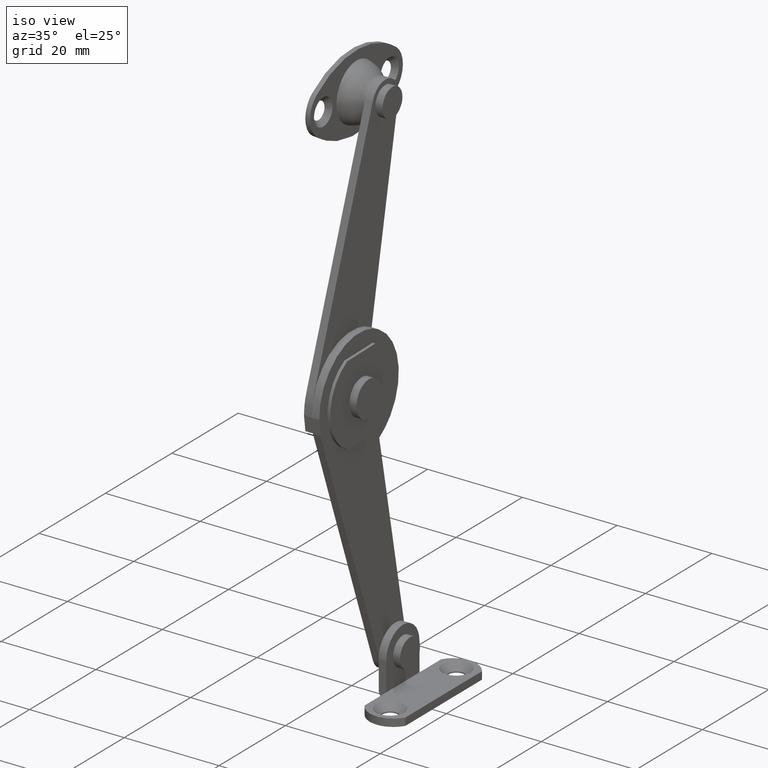
[diagram: clean part render]
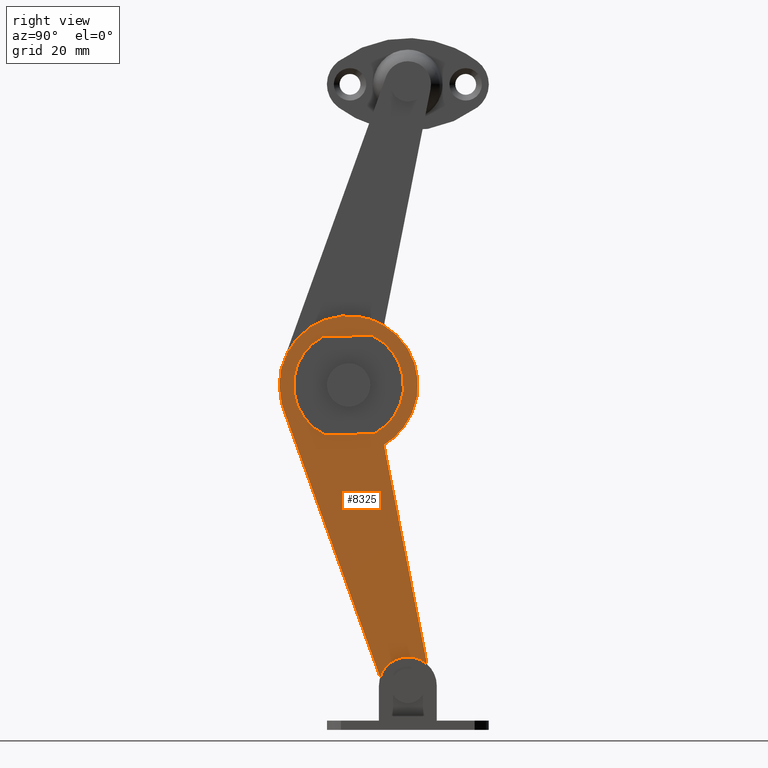
[diagram: tour spotlight — one face highlighted and labeled with its STEP entity id]
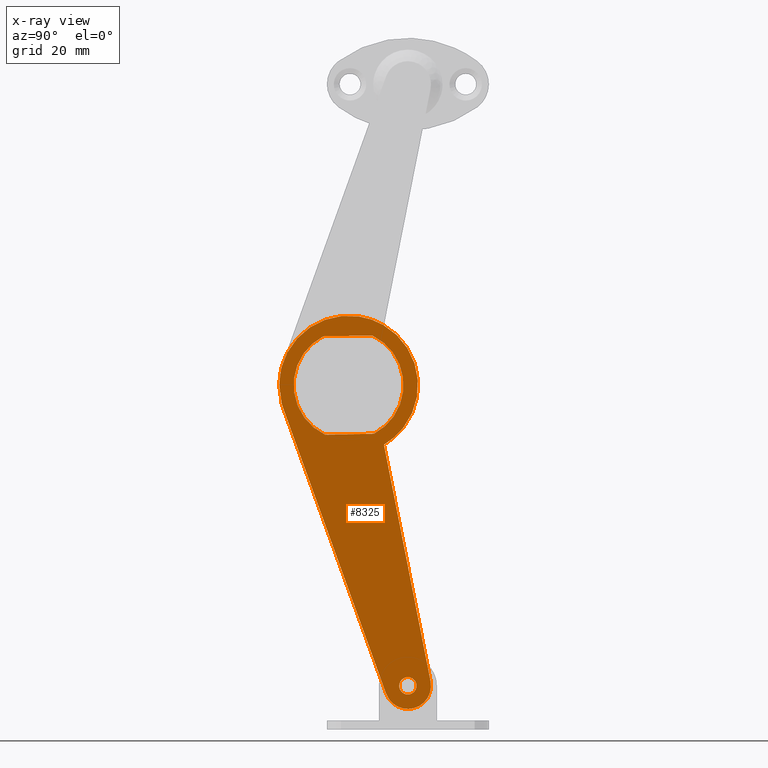
[diagram: x-ray of the same camera — body ghosted, this tour face saturated]
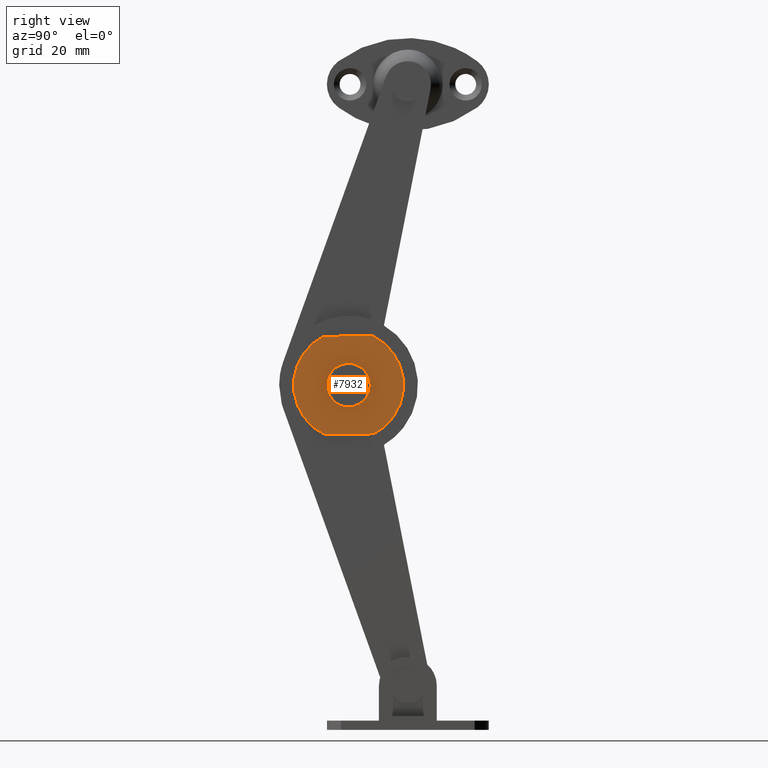
[diagram: tour spotlight — one face highlighted and labeled with its STEP entity id]
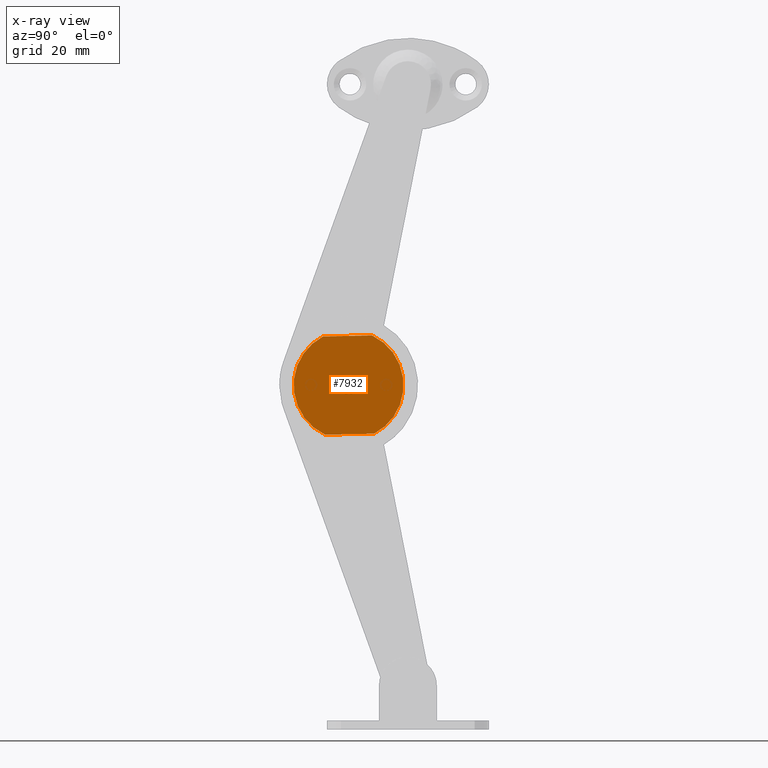
[diagram: x-ray of the same camera — body ghosted, this tour face saturated]
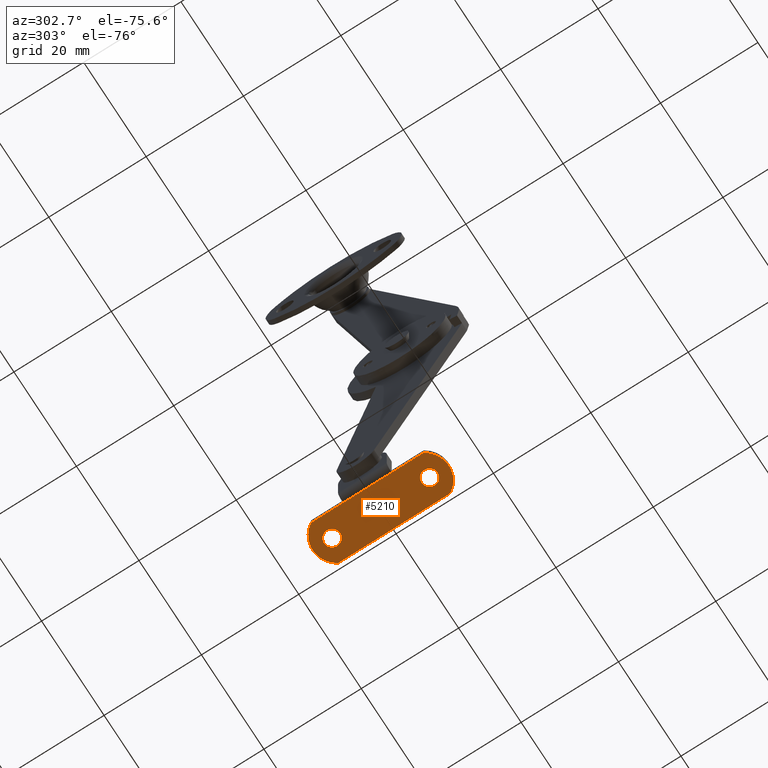
[diagram: tour spotlight — one face highlighted and labeled with its STEP entity id]
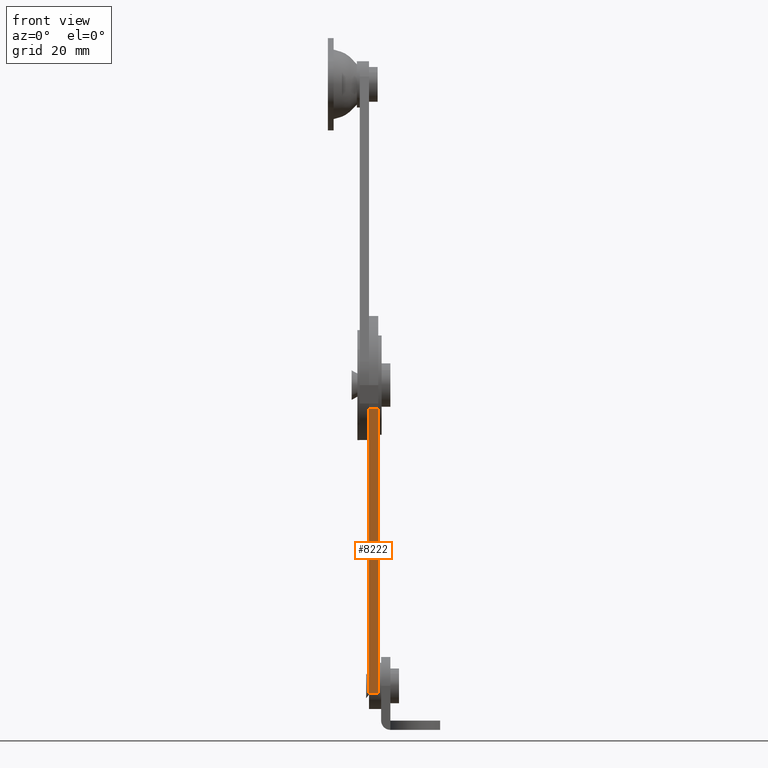
[diagram: tour spotlight — one face highlighted and labeled with its STEP entity id]
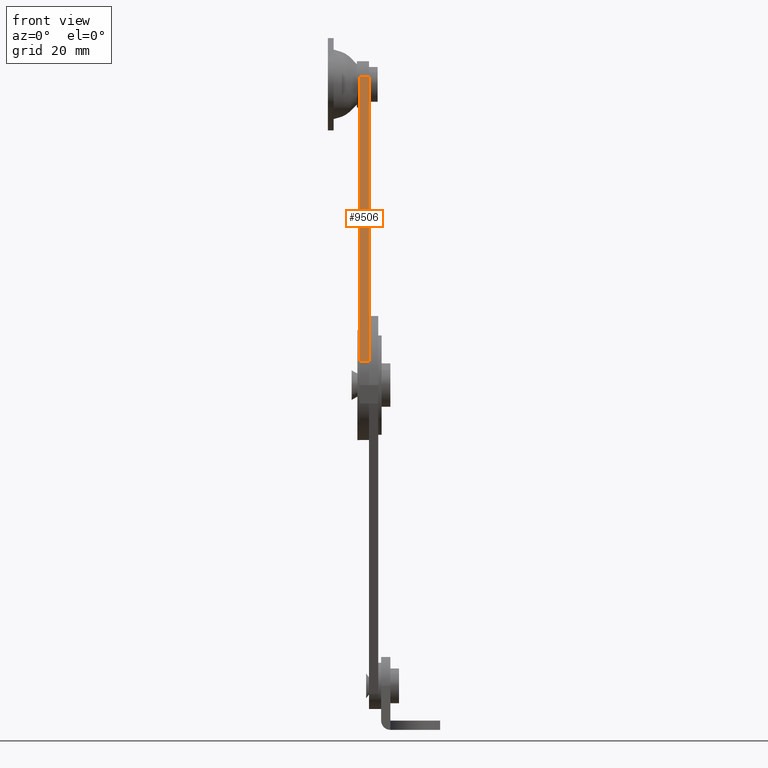
[diagram: tour spotlight — one face highlighted and labeled with its STEP entity id]
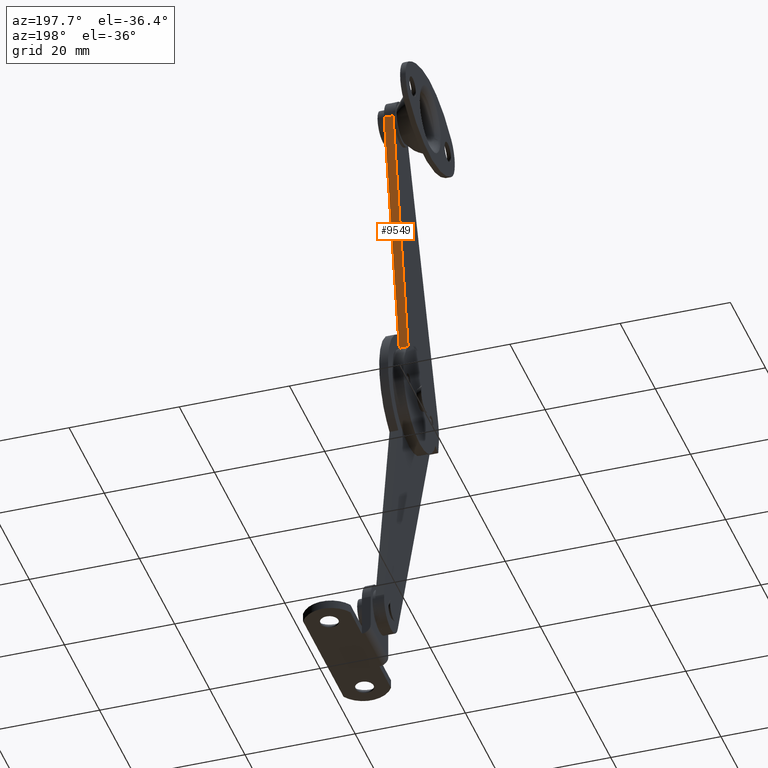
[diagram: tour spotlight — one face highlighted and labeled with its STEP entity id]
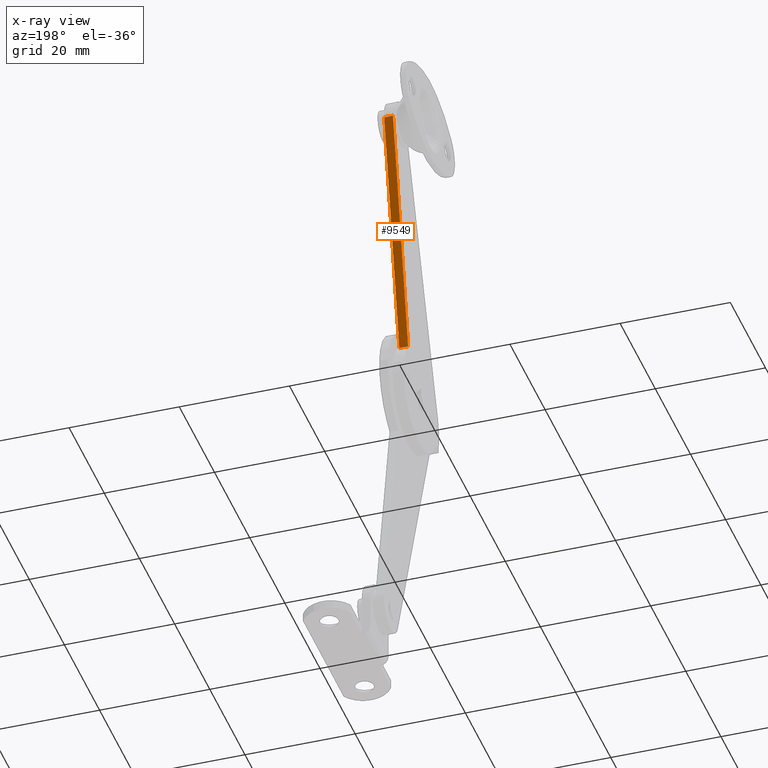
[diagram: x-ray of the same camera — body ghosted, this tour face saturated]
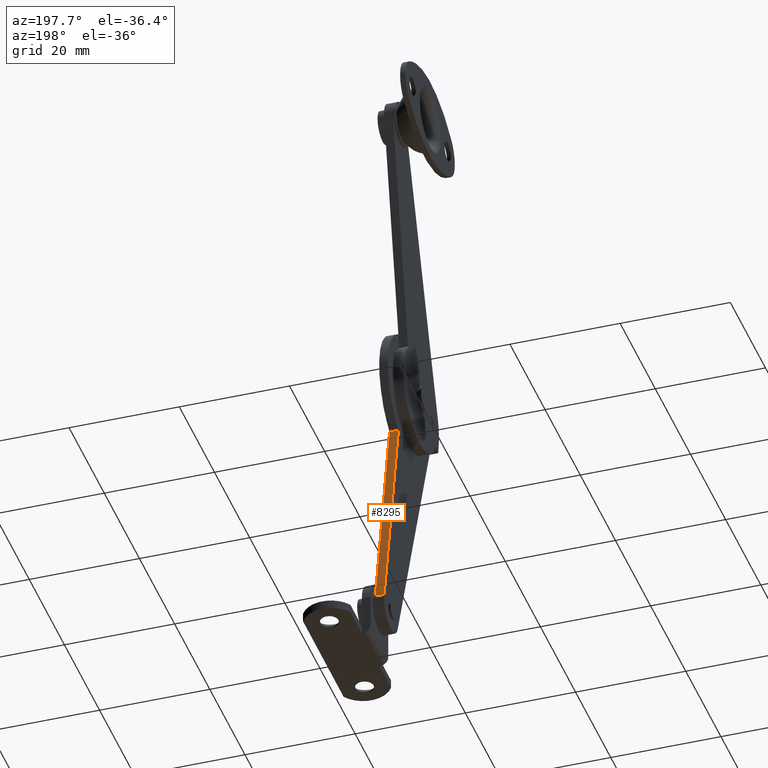
[diagram: tour spotlight — one face highlighted and labeled with its STEP entity id]
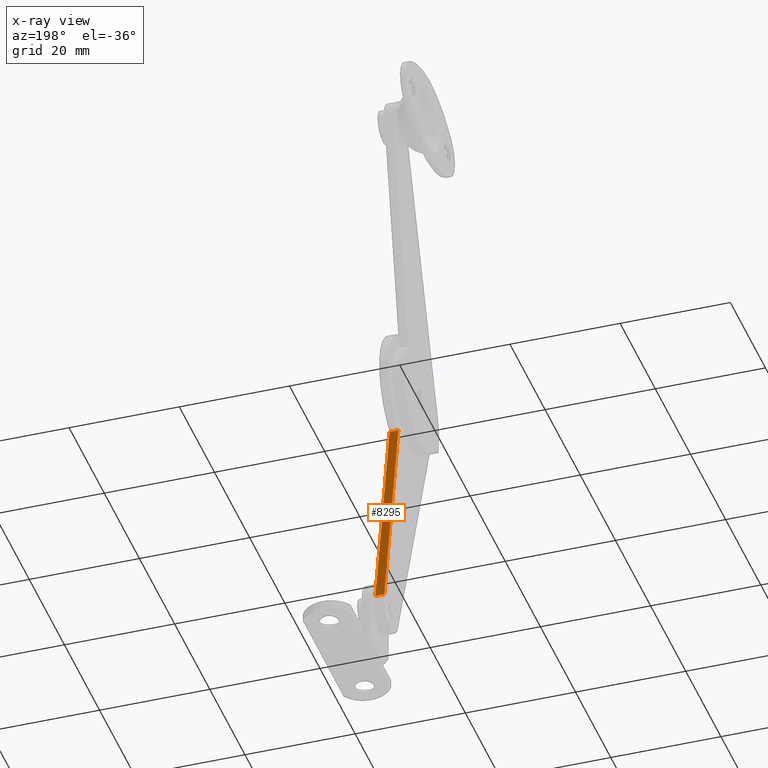
[diagram: x-ray of the same camera — body ghosted, this tour face saturated]
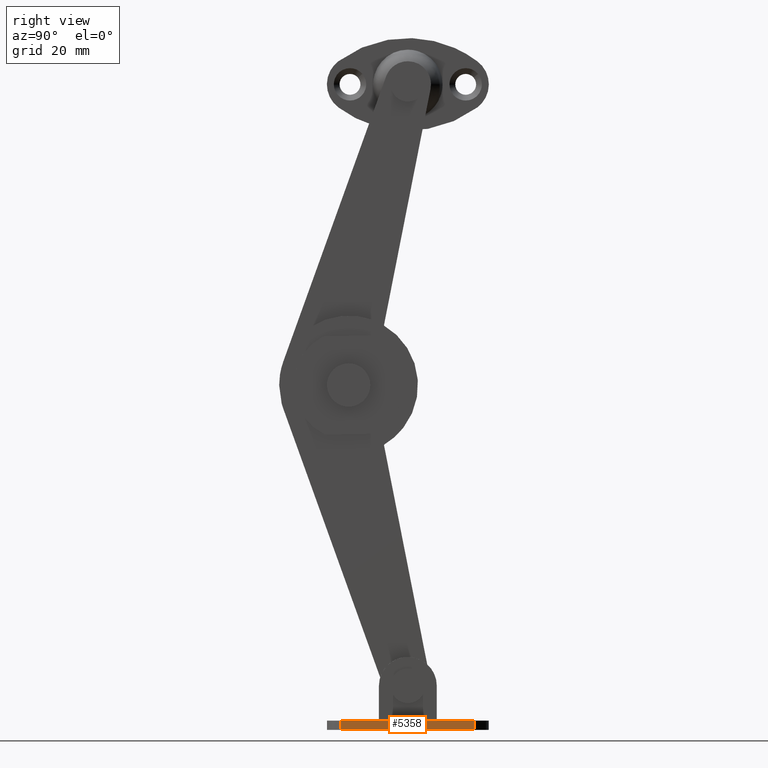
[diagram: tour spotlight — one face highlighted and labeled with its STEP entity id]
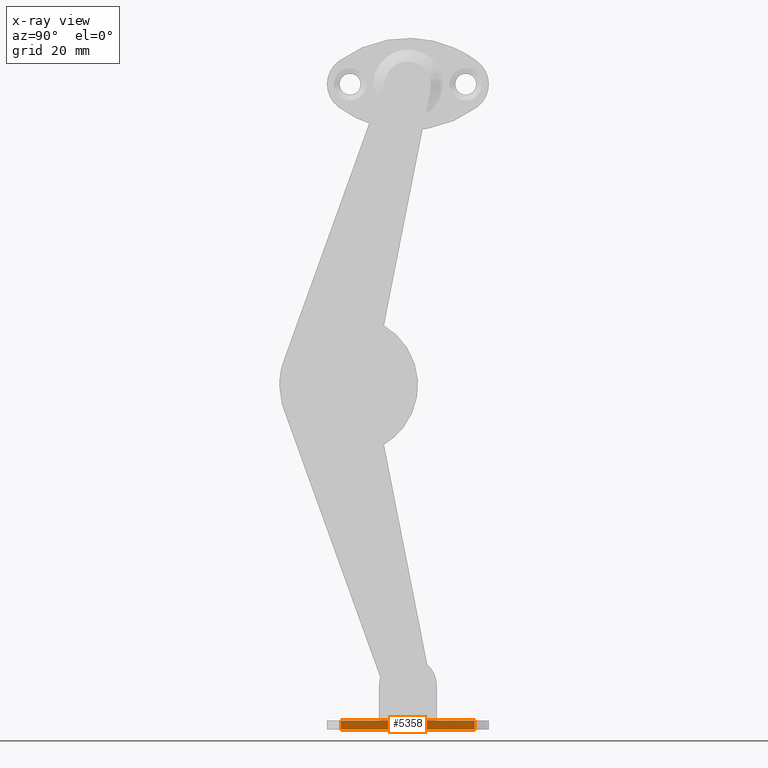
[diagram: x-ray of the same camera — body ghosted, this tour face saturated]
A machine part: a face-by-face anatomy tour. The part has 135 B-rep faces; the first image is the clean iso view, then the 8 largest visible faces are spotlighted one at a time (largest first), each with its STEP entity span.

Face 1 — right view, entity #8325. An x-ray twin of the same camera follows (body ghosted, this face saturated) — the face is partly hidden behind the body. In plain terms, the highlighted face is a freeform B-spline surface patch.
Definition (entity closure, byte-faithful):
#7257=CARTESIAN_POINT('',(8.699998474121170,0.0,-50.499999999999993));
#7258=VERTEX_POINT('',#7257);
#7259=CARTESIAN_POINT('',(8.699998474104365,1.074976035034924,-50.953852664784932));
#7260=VERTEX_POINT('',#7259);
#7261=CARTESIAN_POINT('',(8.699998474121170,0.0,-50.499999999999993));
#7262=CARTESIAN_POINT('',(8.699998474118257,0.187288143505633,-50.499856489521832));
#7263=CARTESIAN_POINT('',(8.699998474111949,0.586644376410651,-50.575808291676090));
#7264=CARTESIAN_POINT('',(8.699998474106721,0.927143610385002,-50.801527376133528));
#7265=CARTESIAN_POINT('',(8.699998474104365,1.074976035034924,-50.953852664784932));
#7266=B_SPLINE_CURVE_WITH_KNOTS('',3,(#7261,#7262,#7263,#7264,#7265),.UNSPECIFIED.,.F.,.U.,(4,1,4),(0.000000071664789,0.561822161295044,1.198513672822475),.UNSPECIFIED.);
#7267=EDGE_CURVE('',#7258,#7260,#7266,.T.);
#7269=CARTESIAN_POINT('',(8.699998474121170,-1.499999999996925,-51.999996962715031));
#7270=VERTEX_POINT('',#7269);
#7271=CARTESIAN_POINT('',(8.699998474121170,-1.499999999996925,-51.999996962715031));
#7272=CARTESIAN_POINT('',(8.699998474121147,-1.500370337712379,-51.779023510026697));
#7273=CARTESIAN_POINT('',(8.699998474121223,-1.425414216354535,-51.448004688552459));
#7274=CARTESIAN_POINT('',(8.699998474121127,-1.198635732506074,-51.080121835901821));
#7275=CARTESIAN_POINT('',(8.699998474121216,-0.960572036989733,-50.830054064066253));
#7276=CARTESIAN_POINT('',(8.699998474121120,-0.576529377810327,-50.580102192674190));
#7277=CARTESIAN_POINT('',(8.699998474121223,-0.220960987595322,-50.499651662492283));
#7278=CARTESIAN_POINT('',(8.699998474121170,0.0,-50.499999999999993));
#7279=B_SPLINE_CURVE_WITH_KNOTS('',3,(#7271,#7272,#7273,#7274,#7275,#7276,#7277,#7278),.UNSPECIFIED.,.F.,.U.,(4,1,1,1,1,4),(0.000000288017795,0.662699800323275,0.994074969800624,1.288574123707096,1.693552390608844,2.356251904649848),.UNSPECIFIED.);
#7280=EDGE_CURVE('',#7270,#7258,#7279,.T.);
#7282=CARTESIAN_POINT('',(8.699998474121170,0.0,-53.500000000000000));
#7283=VERTEX_POINT('',#7282);
#7284=CARTESIAN_POINT('',(8.699998474121170,0.0,-53.500000000000000));
#7285=CARTESIAN_POINT('',(8.699998474121163,-0.171815781495255,-53.500099982126308));
#7286=CARTESIAN_POINT('',(8.699998474121177,-0.503100390715421,-53.442465539245198));
#7287=CARTESIAN_POINT('',(8.699998474121154,-0.884184566475428,-53.232706384397453));
#7288=CARTESIAN_POINT('',(8.699998474121188,-1.169941395297740,-52.960564787200902));
#7289=CARTESIAN_POINT('',(8.699998474121134,-1.419895745083198,-52.576525940906457));
#7290=CARTESIAN_POINT('',(8.699998474121259,-1.500349693132894,-52.220958990374832));
#7291=CARTESIAN_POINT('',(8.699998474121170,-1.499999999996925,-51.999996962715031));
#7292=B_SPLINE_CURVE_WITH_KNOTS('',3,(#7284,#7285,#7286,#7287,#7288,#7289,#7290,#7291),.UNSPECIFIED.,.F.,.U.,(4,1,1,1,1,4),(0.000000283870947,0.515427329841123,0.994076412127644,1.288576003724847,1.693554854033048,2.356255328463372),.UNSPECIFIED.);
#7293=EDGE_CURVE('',#7283,#7270,#7292,.T.);
#7295=CARTESIAN_POINT('',(8.699998474150979,1.105916710460835,-53.013385661442719));
#7296=VERTEX_POINT('',#7295);
#7297=CARTESIAN_POINT('',(8.699998474150979,1.105916710460835,-53.013385661442719));
#7298=CARTESIAN_POINT('',(8.699998474147922,0.992224893007027,-53.137636584586780));
#7299=CARTESIAN_POINT('',(8.699998474142042,0.774266236197816,-53.306753778914000));
#7300=CARTESIAN_POINT('',(8.699998474131647,0.388581214182674,-53.464651270909741));
#7301=CARTESIAN_POINT('',(8.699998474125007,0.142499428526010,-53.500057912028169));
#7302=CARTESIAN_POINT('',(8.699998474121170,0.0,-53.500000000000000));
#7303=B_SPLINE_CURVE_WITH_KNOTS('',3,(#7297,#7298,#7299,#7300,#7301,#7302),.UNSPECIFIED.,.F.,.U.,(4,1,1,4),(0.000000086123438,0.505209565473339,0.816090856426022,1.243582391910081),.UNSPECIFIED.);
#7304=EDGE_CURVE('',#7296,#7283,#7303,.T.);
#7382=CARTESIAN_POINT('',(8.699998474121170,1.499999999996925,-52.000003037284962));
#7383=VERTEX_POINT('',#7382);
#7384=CARTESIAN_POINT('',(8.699998474104365,1.074976035034924,-50.953852664784932));
#7385=CARTESIAN_POINT('',(8.699998474106724,1.218171234207580,-51.100622458972857));
#7386=CARTESIAN_POINT('',(8.699998474112061,1.429280209485726,-51.433305336416822));
#7387=CARTESIAN_POINT('',(8.699998474118264,1.500157540360373,-51.819083171208653));
#7388=CARTESIAN_POINT('',(8.699998474121170,1.499999999996925,-52.000003037284962));
#7389=B_SPLINE_CURVE_WITH_KNOTS('',3,(#7384,#7385,#7386,#7387,#7388),.UNSPECIFIED.,.F.,.U.,(4,1,4),(0.000000060386537,0.615033703956076,1.157742437556688),.UNSPECIFIED.);
#7390=EDGE_CURVE('',#7260,#7383,#7389,.T.);
#7412=CARTESIAN_POINT('',(8.699998474121170,1.499999999996925,-52.000003037284962));
#7413=CARTESIAN_POINT('',(8.699998474126979,1.500204205602727,-52.197058183977383));
#7414=CARTESIAN_POINT('',(8.699998474137846,1.425789151057435,-52.567749196636854));
#7415=CARTESIAN_POINT('',(8.699998474147227,1.223475433218947,-52.885277424369733));
#7416=CARTESIAN_POINT('',(8.699998474150979,1.105916710460835,-53.013385661442719));
#7417=B_SPLINE_CURVE_WITH_KNOTS('',3,(#7412,#7413,#7414,#7415,#7416),.UNSPECIFIED.,.F.,.U.,(4,1,4),(0.000000063143126,0.591085765990306,1.112669327835271),.UNSPECIFIED.);
#7418=EDGE_CURVE('',#7383,#7296,#7417,.T.);
#7938=CARTESIAN_POINT('',(8.699998474121149,-5.834927892778881,-8.413314189848279));
#7939=VERTEX_POINT('',#7938);
#7940=CARTESIAN_POINT('',(8.699998474121170,-14.318506927956500,-8.583275226252480));
#7941=VERTEX_POINT('',#7940);
#7942=CARTESIAN_POINT('',(8.699998474121149,-5.834927892778881,-8.413314189848279));
#7943=CARTESIAN_POINT('',(8.699998474121170,-14.318506927956500,-8.583275226252480));
#7944=QUASI_UNIFORM_CURVE('',1,(#7942,#7943),.UNSPECIFIED.,.F.,.U.);
#7945=EDGE_CURVE('',#7939,#7941,#7944,.T.);
#7975=CARTESIAN_POINT('',(8.699998474121170,-6.175439596685810,8.583275226252310));
#7976=VERTEX_POINT('',#7975);
#7977=CARTESIAN_POINT('',(8.699998474121170,-6.175439596685810,8.583275226252310));
#7978=CARTESIAN_POINT('',(8.699998474121157,-5.531548585170285,8.277988351646709));
#7979=CARTESIAN_POINT('',(8.699998474121186,-4.359905482702276,7.550618414521543));
#7980=CARTESIAN_POINT('',(8.699998474121191,-2.997315836974162,6.224563825214879));
#7981=CARTESIAN_POINT('',(8.699998474121212,-1.937408039482245,4.717378555709098));
#7982=CARTESIAN_POINT('',(8.699998474121131,-1.252954075815755,3.212382035068837));
#7983=CARTESIAN_POINT('',(8.699998474121195,-0.805315238780772,1.454673666261031));
#7984=CARTESIAN_POINT('',(8.699998474121102,-0.693451284486325,-0.195605102640625));
#7985=CARTESIAN_POINT('',(8.699998474121166,-0.878766510761394,-1.751600778145852));
#7986=CARTESIAN_POINT('',(8.699998474121177,-1.213673602430693,-3.026326490882657));
#7987=CARTESIAN_POINT('',(8.699998474121161,-1.762830317051601,-4.374895731615496));
#7988=CARTESIAN_POINT('',(8.699998474121168,-2.648902045907281,-5.802426619956211));
#7989=CARTESIAN_POINT('',(8.699998474121150,-4.019298193752113,-7.272625186047568));
#7990=CARTESIAN_POINT('',(8.699998474121156,-5.155206765636804,-8.057071242994386));
#7991=CARTESIAN_POINT('',(8.699998474121149,-5.834927892778881,-8.413314189848279));
#7992=B_SPLINE_CURVE_WITH_KNOTS('',3,(#7977,#7978,#7979,#7980,#7981,#7982,#7983,#7984,#7985,#7986,#7987,#7988,#7989,#7990,#7991),.UNSPECIFIED.,.F.,.U.,(4,1,1,1,1,1,1,1,1,1,1,1,4),(0.000000190785148,2.137767461056921,4.111137605536591,5.673381860825748,7.646732812322336,9.044523479998386,11.100039934538460,12.580096827635201,13.731204790873930,15.046777414925581,16.937920592211000,18.746835437668100,21.049056074943341),.UNSPECIFIED.);
#7993=EDGE_CURVE('',#7976,#7939,#7992,.T.);
#8010=CARTESIAN_POINT('',(8.699998474121170,-14.659018631863320,8.413314189848109));
#8011=VERTEX_POINT('',#8010);
#8012=CARTESIAN_POINT('',(8.699998474121170,-14.659018631863320,8.413314189848109));
#8013=CARTESIAN_POINT('',(8.699998474121170,-6.175439596685810,8.583275226252310));
#8014=QUASI_UNIFORM_CURVE('',1,(#8012,#8013),.UNSPECIFIED.,.F.,.U.);
#8015=EDGE_CURVE('',#8011,#7976,#8014,.T.);
#8041=CARTESIAN_POINT('',(8.699998474121170,-14.318506927956500,-8.583275226252480));
#8042=CARTESIAN_POINT('',(8.699998474121156,-14.739475760809650,-8.383600291324076));
#8043=CARTESIAN_POINT('',(8.699998474121191,-15.647566553033650,-7.867894531937068));
#8044=CARTESIAN_POINT('',(8.699998474121133,-16.909209749410881,-6.845767229484564));
#8045=CARTESIAN_POINT('',(8.699998474121209,-18.018965962253031,-5.549633960777087));
#8046=CARTESIAN_POINT('',(8.699998474121115,-18.798652177492649,-4.220915151342692));
#8047=CARTESIAN_POINT('',(8.699998474121326,-19.418964645591061,-2.664560820520821));
#8048=CARTESIAN_POINT('',(8.699998474120894,-19.767219113024449,-0.962225764218751));
#8049=CARTESIAN_POINT('',(8.699998474121333,-19.756671172576539,0.799787168744827));
#8050=CARTESIAN_POINT('',(8.699998474121346,-19.491125157690121,2.343083812612208));
#8051=CARTESIAN_POINT('',(8.699998474120893,-19.021418104225891,3.751882997791653));
#8052=CARTESIAN_POINT('',(8.699998474121308,-18.250290319957880,5.210631526547355));
#8053=CARTESIAN_POINT('',(8.699998474121115,-17.215689759123229,6.533583246631879));
#8054=CARTESIAN_POINT('',(8.699998474121186,-15.980508694822410,7.628515726202565));
#8055=CARTESIAN_POINT('',(8.699998474121163,-15.095929218690840,8.184223976621940));
#8056=CARTESIAN_POINT('',(8.699998474121170,-14.659018631863320,8.413314189848109));
#8057=B_SPLINE_CURVE_WITH_KNOTS('',3,(#8041,#8042,#8043,#8044,#8045,#8046,#8047,#8048,#8049,#8050,#8051,#8052,#8053,#8054,#8055,#8056),.UNSPECIFIED.,.F.,.U.,(4,1,1,1,1,1,1,1,1,1,1,1,1,4),(0.000000190781464,1.397779474769521,3.124453336930635,4.851146111263162,6.495618087659178,7.728985915195963,9.866762507777157,11.675594414930311,12.991207332799290,14.553446448787261,16.115685684186371,17.924596281312350,19.569065740469039,21.049056074943351),.UNSPECIFIED.);
#8058=EDGE_CURVE('',#7941,#8011,#8057,.T.);
#8088=CARTESIAN_POINT('',(8.699998474121170,-22.246973262321148,6.274254E-016));
#8089=VERTEX_POINT('',#8088);
#8090=CARTESIAN_POINT('',(8.699998474121170,-4.303190586159510,10.424559822772419));
#8091=VERTEX_POINT('',#8090);
#8092=CARTESIAN_POINT('',(8.699998474121170,-22.246973262321148,6.274254E-016));
#8093=CARTESIAN_POINT('',(8.699998474121184,-22.247188398965971,0.946587042855039));
#8094=CARTESIAN_POINT('',(8.699998474121170,-22.045080702614321,2.643808156613526));
#8095=CARTESIAN_POINT('',(8.699998474121143,-21.310974242985640,4.783504625234647));
#8096=CARTESIAN_POINT('',(8.699998474121198,-20.442644876082429,6.396977777126180));
#8097=CARTESIAN_POINT('',(8.699998474121179,-19.500523674596071,7.693666781725843));
#8098=CARTESIAN_POINT('',(8.699998474121152,-18.465112020500630,8.785449656662030));
#8099=CARTESIAN_POINT('',(8.699998474121189,-17.178653267097420,9.846182739075243));
#8100=CARTESIAN_POINT('',(8.699998474121154,-15.723426168769659,10.731794629558980));
#8101=CARTESIAN_POINT('',(8.699998474121179,-14.090382015772080,11.406199588660821));
#8102=CARTESIAN_POINT('',(8.699998474121163,-12.476949021121429,11.830257562419360));
#8103=CARTESIAN_POINT('',(8.699998474121186,-10.949452506334120,12.011799815398890));
#8104=CARTESIAN_POINT('',(8.699998474121090,-9.347859136195673,11.998669091893490));
#8105=CARTESIAN_POINT('',(8.699998474121397,-7.791091500262466,11.787767462710811));
#8106=CARTESIAN_POINT('',(8.699998474120735,-6.028908274458955,11.285838240768591));
#8107=CARTESIAN_POINT('',(8.699998474121321,-4.898611854576870,10.764118570287691));
#8108=CARTESIAN_POINT('',(8.699998474121170,-4.303190586159510,10.424559822772419));
#8109=B_SPLINE_CURVE_WITH_KNOTS('',3,(#8092,#8093,#8094,#8095,#8096,#8097,#8098,#8099,#8100,#8101,#8102,#8103,#8104,#8105,#8106,#8107,#8108),.UNSPECIFIED.,.F.,.U.,(4,1,1,1,1,1,1,1,1,1,1,1,1,1,4),(0.000000161244348,2.839725578467938,5.091937258495914,6.756615236758890,8.323382039222288,9.890147336331847,11.261065747880060,13.317338768469790,14.982041088548700,16.548786421070279,18.311387343077531,19.584376510113909,21.346973492226841,23.011683317127510,25.067997343372920),.UNSPECIFIED.);
#8110=EDGE_CURVE('',#8089,#8091,#8109,.T.);
#8112=CARTESIAN_POINT('',(8.699998474121170,-4.135061934568050,-10.326884327893060));
#8113=VERTEX_POINT('',#8112);
#8114=CARTESIAN_POINT('',(8.699998474121170,-4.303190586159510,10.424559822772419));
#8115=CARTESIAN_POINT('',(8.699998474121189,-3.424052308885202,9.923574677718571));
#8116=CARTESIAN_POINT('',(8.699998474121115,-1.951562318525757,8.816029228279541));
#8117=CARTESIAN_POINT('',(8.699998474121220,-0.391883788726927,6.955243715490821));
#8118=CARTESIAN_POINT('',(8.699998474121150,0.750890806014766,4.969533918309476));
#8119=CARTESIAN_POINT('',(8.699998474121143,1.503520060042972,2.832315815569034));
#8120=CARTESIAN_POINT('',(8.699998474121234,1.827896787123409,0.360898977601914));
#8121=CARTESIAN_POINT('',(8.699998474121179,1.682173606516161,-1.733901657326713));
#8122=CARTESIAN_POINT('',(8.699998474121140,1.237327140805432,-3.611324080509947));
#8123=CARTESIAN_POINT('',(8.699998474121202,0.643348633126884,-5.136695797354110));
#8124=CARTESIAN_POINT('',(8.699998474121156,-0.257513743084260,-6.731651757868211));
#8125=CARTESIAN_POINT('',(8.699998474121175,-1.713116924414665,-8.587737253534867));
#8126=CARTESIAN_POINT('',(8.699998474121175,-3.151629068182543,-9.745417080564730));
#8127=CARTESIAN_POINT('',(8.699998474121170,-4.135061934568050,-10.326884327893060));
#8128=B_SPLINE_CURVE_WITH_KNOTS('',3,(#8114,#8115,#8116,#8117,#8118,#8119,#8120,#8121,#8122,#8123,#8124,#8125,#8126,#8127),.UNSPECIFIED.,.F.,.U.,(4,1,1,1,1,1,1,1,1,1,1,4),(0.000000161265319,3.035557840107234,5.483616284415316,7.246227786835163,9.890145772382402,12.240235281537650,14.688261771119940,16.157075988045762,18.017616736004179,19.584373413203259,21.640749423800560,25.067993379326161),.UNSPECIFIED.);
#8129=EDGE_CURVE('',#8091,#8113,#8128,.T.);
#8151=CARTESIAN_POINT('',(8.699998474121170,-21.820226994428399,-3.171718469893720));
#8152=VERTEX_POINT('',#8151);
#8153=CARTESIAN_POINT('',(8.699998474121170,-21.820226994428399,-3.171718469893720));
#8154=CARTESIAN_POINT('',(8.699998474121170,-22.246973262321148,6.274254E-016));
#8155=QUASI_UNIFORM_CURVE('',1,(#8153,#8154),.UNSPECIFIED.,.F.,.U.);
#8156=EDGE_CURVE('',#8152,#8089,#8155,.T.);
#8182=CARTESIAN_POINT('',(8.699998474121170,-21.535469714833550,-4.070631911635386));
#8183=VERTEX_POINT('',#8182);
#8184=CARTESIAN_POINT('',(8.699998474121170,-21.535469714833550,-4.070631911635386));
#8185=CARTESIAN_POINT('',(8.699998474121164,-21.642116364647531,-3.774879252565015));
#8186=CARTESIAN_POINT('',(8.699998474121179,-21.737134300461349,-3.474932916207983));
#8187=CARTESIAN_POINT('',(8.699998474121170,-21.820226994428399,-3.171718469893720));
#8188=B_SPLINE_CURVE_WITH_KNOTS('',3,(#8184,#8185,#8186,#8187),.UNSPECIFIED.,.F.,.U.,(4,4),(2.864918E-010,0.943184559594797),.UNSPECIFIED.);
#8189=EDGE_CURVE('',#8183,#8152,#8188,.T.);
#8206=CARTESIAN_POINT('',(8.699998474121170,-3.762834701924080,-53.356878760970297));
#8207=VERTEX_POINT('',#8206);
#8208=CARTESIAN_POINT('',(8.699998474121170,-3.762834701924080,-53.356878760970297));
#8209=CARTESIAN_POINT('',(8.699998474121170,-21.535469714833550,-4.070631911635386));
#8210=QUASI_UNIFORM_CURVE('',1,(#8208,#8209),.UNSPECIFIED.,.F.,.U.);
#8211=EDGE_CURVE('',#8207,#8183,#8210,.T.);
#8241=CARTESIAN_POINT('',(8.699998474121170,3.924537018917785,-51.226640025646198));
#8242=VERTEX_POINT('',#8241);
#8243=CARTESIAN_POINT('',(8.699998474121170,1.068183354324262,-55.854742561769363));
#8244=VERTEX_POINT('',#8243);
#8245=CARTESIAN_POINT('',(8.699998474121170,3.924537018917785,-51.226640025646198));
#8246=CARTESIAN_POINT('',(8.699998474121180,4.024467514269751,-51.730857855357307));
#8247=CARTESIAN_POINT('',(8.699998474121164,4.024981502023551,-52.460494409248710));
#8248=CARTESIAN_POINT('',(8.699998474121166,3.777729586315192,-53.364410817646707));
#8249=CARTESIAN_POINT('',(8.699998474121179,3.430462406653947,-54.133442728836791));
#8250=CARTESIAN_POINT('',(8.699998474121161,2.808621191646889,-54.928211314920901));
#8251=CARTESIAN_POINT('',(8.699998474121179,1.935657092827103,-55.544486646653702));
#8252=CARTESIAN_POINT('',(8.699998474121168,1.338321332104119,-55.779913104672239));
#8253=CARTESIAN_POINT('',(8.699998474121170,1.068183354324262,-55.854742561769363));
#8254=B_SPLINE_CURVE_WITH_KNOTS('',3,(#8245,#8246,#8247,#8248,#8249,#8250,#8251,#8252,#8253),.UNSPECIFIED.,.F.,.U.,(4,1,1,1,1,1,4),(0.000000133109157,1.541767740353710,2.149150377459788,2.803229211478838,4.064654046546166,5.139243347677382,5.980187953213187),.UNSPECIFIED.);
#8255=EDGE_CURVE('',#8242,#8244,#8254,.T.);
#8257=CARTESIAN_POINT('',(8.699998474121170,1.068183354324262,-55.854742561769363));
#8258=CARTESIAN_POINT('',(8.699998474121179,0.738031750615944,-55.946319182414229));
#8259=CARTESIAN_POINT('',(8.699998474121141,0.054061464463814,-56.043863488998007));
#8260=CARTESIAN_POINT('',(8.699998474121246,-0.959848826131714,-55.926729740544587));
#8261=CARTESIAN_POINT('',(8.699998474121076,-1.780210406525629,-55.611972976728417));
#8262=CARTESIAN_POINT('',(8.699998474121289,-2.479420207016171,-55.168904035646932));
#8263=CARTESIAN_POINT('',(8.699998474121065,-3.200712895553418,-54.494875351351268));
#8264=CARTESIAN_POINT('',(8.699998474121216,-3.599434870400753,-53.811225607711123));
#8265=CARTESIAN_POINT('',(8.699998474121170,-3.762834701924080,-53.356878760970297));
#8266=B_SPLINE_CURVE_WITH_KNOTS('',3,(#8257,#8258,#8259,#8260,#8261,#8262,#8263,#8264,#8265),.UNSPECIFIED.,.F.,.U.,(4,1,1,1,1,1,4),(0.000000133093981,1.027831927564370,2.055706277293062,3.036767364016370,3.644152353959111,4.531858454818927,5.980184152883719),.UNSPECIFIED.);
#8267=EDGE_CURVE('',#8244,#8207,#8266,.T.);
#8285=CARTESIAN_POINT('',(8.699998474121170,-4.135061934568050,-10.326884327893060));
#8286=CARTESIAN_POINT('',(8.699998474121170,3.924537018917785,-51.226640025646198));
#8287=QUASI_UNIFORM_CURVE('',1,(#8285,#8286),.UNSPECIFIED.,.F.,.U.);
#8288=EDGE_CURVE('',#8113,#8242,#8287,.T.);
#8296=CARTESIAN_POINT('',(8.699998474121149,5.310966243852640,-59.395391352774510));
#8297=CARTESIAN_POINT('',(8.699998474121149,-23.558006898760119,-59.395391352774510));
#8298=CARTESIAN_POINT('',(8.699998474121149,5.310966243852640,15.390602194804391));
#8299=CARTESIAN_POINT('',(8.699998474121149,-23.558006898760119,15.390602194804391));
#8300=B_SPLINE_SURFACE_WITH_KNOTS('',1,1,((#8296,#8298),(#8297,#8299)),.UNSPECIFIED.,.F.,.F.,.U.,(2,2),(2,2),(0.0,28.868973142612759),(0.0,74.785993547578897),.UNSPECIFIED.);
#8301=ORIENTED_EDGE('',*,*,#8288,.F.);
#8302=ORIENTED_EDGE('',*,*,#8129,.F.);
#8303=ORIENTED_EDGE('',*,*,#8110,.F.);
#8304=ORIENTED_EDGE('',*,*,#8156,.F.);
#8305=ORIENTED_EDGE('',*,*,#8189,.F.);
#8306=ORIENTED_EDGE('',*,*,#8211,.F.);
#8307=ORIENTED_EDGE('',*,*,#8267,.F.);
#8308=ORIENTED_EDGE('',*,*,#8255,.F.);
#8309=EDGE_LOOP('',(#8301,#8302,#8303,#8304,#8305,#8306,#8307,#8308));
#8310=FACE_OUTER_BOUND('',#8309,.T.);
#8311=ORIENTED_EDGE('',*,*,#8015,.T.);
#8312=ORIENTED_EDGE('',*,*,#7993,.T.);
#8313=ORIENTED_EDGE('',*,*,#7945,.T.);
#8314=ORIENTED_EDGE('',*,*,#8058,.T.);
#8315=EDGE_LOOP('',(#8311,#8312,#8313,#8314));
#8316=FACE_BOUND('',#8315,.T.);
#8317=ORIENTED_EDGE('',*,*,#7293,.T.);
#8318=ORIENTED_EDGE('',*,*,#7280,.T.);
#8319=ORIENTED_EDGE('',*,*,#7267,.T.);
#8320=ORIENTED_EDGE('',*,*,#7390,.T.);
#8321=ORIENTED_EDGE('',*,*,#7418,.T.);
#8322=ORIENTED_EDGE('',*,*,#7304,.T.);
#8323=EDGE_LOOP('',(#8317,#8318,#8319,#8320,#8321,#8322));
#8324=FACE_BOUND('',#8323,.T.);
#8325=ADVANCED_FACE('',(#8310,#8316,#8324),#8300,.F.);

Face 2 — right view, entity #7932. An x-ray twin of the same camera follows (body ghosted, this face saturated) — the face is partly hidden behind the body. In plain terms, the highlighted face is a freeform B-spline surface patch.
Definition (entity closure, byte-faithful):
#7449=CARTESIAN_POINT('',(9.299996948242129,-10.246973262321140,1.500000000000002));
#7450=VERTEX_POINT('',#7449);
#7451=CARTESIAN_POINT('',(9.299996948229907,-9.171997227286218,1.046147335215067));
#7452=VERTEX_POINT('',#7451);
#7453=CARTESIAN_POINT('',(9.299996948242129,-10.246973262321140,1.500000000000002));
#7454=CARTESIAN_POINT('',(9.299996948240274,-10.084681971014501,1.500064895389207));
#7455=CARTESIAN_POINT('',(9.299996948235757,-9.685184557416653,1.434595438181511));
#7456=CARTESIAN_POINT('',(9.299996948231783,-9.337174208226866,1.216521492814603));
#7457=CARTESIAN_POINT('',(9.299996948229907,-9.171997227286218,1.046147335215067));
#7458=B_SPLINE_CURVE_WITH_KNOTS('',3,(#7453,#7454,#7455,#7456,#7457),.UNSPECIFIED.,.F.,.U.,(4,1,4),(0.000000071664428,0.486899923144558,1.198513672822452),.UNSPECIFIED.);
#7459=EDGE_CURVE('',#7450,#7452,#7458,.T.);
#7461=CARTESIAN_POINT('',(9.299996948242129,-11.746973262318059,0.000003037284961));
#7462=VERTEX_POINT('',#7461);
#7463=CARTESIAN_POINT('',(9.299996948242129,-11.746973262318059,0.000003037284961));
#7464=CARTESIAN_POINT('',(9.299996948242134,-11.747088310711669,0.171820850514617));
#7465=CARTESIAN_POINT('',(9.299996948242121,-11.695804451440271,0.466275948912852));
#7466=CARTESIAN_POINT('',(9.299996948242139,-11.523420223204599,0.808642665841422));
#7467=CARTESIAN_POINT('',(9.299996948242100,-11.315603347942240,1.068286789151010));
#7468=CARTESIAN_POINT('',(9.299996948242223,-11.048016072896550,1.287942779176667));
#7469=CARTESIAN_POINT('',(9.299996948241880,-10.676454538727929,1.458107568774190));
#7470=CARTESIAN_POINT('',(9.299996948242399,-10.394240776831969,1.500053829662295));
#7471=CARTESIAN_POINT('',(9.299996948242129,-10.246973262321140,1.500000000000002));
#7472=B_SPLINE_CURVE_WITH_KNOTS('',3,(#7463,#7464,#7465,#7466,#7467,#7468,#7469,#7470,#7471),.UNSPECIFIED.,.F.,.U.,(4,1,1,1,1,1,4),(0.000000288016019,0.515426584187833,0.883616298716178,1.141351506788639,1.509469417795485,1.914459849586190,2.356251904649897),.UNSPECIFIED.);
#7473=EDGE_CURVE('',#7462,#7450,#7472,.T.);
#7475=CARTESIAN_POINT('',(9.299996948242129,-10.246973262321140,-1.499999999999998));
#7476=VERTEX_POINT('',#7475);
#7477=CARTESIAN_POINT('',(9.299996948242129,-10.246973262321140,-1.499999999999998));
#7478=CARTESIAN_POINT('',(9.299996948242120,-10.467926851762750,-1.500318604878420));
#7479=CARTESIAN_POINT('',(9.299996948242143,-10.872589699182971,-1.408919056210390));
#7480=CARTESIAN_POINT('',(9.299996948242164,-11.337899586801329,-1.072553193999806));
#7481=CARTESIAN_POINT('',(9.299996948242020,-11.661359953774380,-0.601099651270640));
#7482=CARTESIAN_POINT('',(9.299996948242246,-11.747303525930480,-0.220940983815502));
#7483=CARTESIAN_POINT('',(9.299996948242129,-11.746973262318059,0.000003037284961));
#7484=B_SPLINE_CURVE_WITH_KNOTS('',3,(#7477,#7478,#7479,#7480,#7481,#7482,#7483),.UNSPECIFIED.,.F.,.U.,(4,1,1,1,4),(0.000000283865044,0.662700760031224,1.214902451988163,1.693554854032483,2.356255328463375),.UNSPECIFIED.);
#7485=EDGE_CURVE('',#7476,#7462,#7484,.T.);
#7487=CARTESIAN_POINT('',(9.299996948263807,-9.141056551860306,-1.013385661442715));
#7488=VERTEX_POINT('',#7487);
#7489=CARTESIAN_POINT('',(9.299996948263807,-9.141056551860306,-1.013385661442715));
#7490=CARTESIAN_POINT('',(9.299996948261589,-9.254755977557917,-1.137627274417336));
#7491=CARTESIAN_POINT('',(9.299996948257309,-9.472701865706675,-1.306760681947264));
#7492=CARTESIAN_POINT('',(9.299996948249735,-9.858390722229183,-1.464652439392978));
#7493=CARTESIAN_POINT('',(9.299996948244958,-10.104475211262200,-1.500056369249248));
#7494=CARTESIAN_POINT('',(9.299996948242129,-10.246973262321140,-1.499999999999998));
#7495=B_SPLINE_CURVE_WITH_KNOTS('',3,(#7489,#7490,#7491,#7492,#7493,#7494),.UNSPECIFIED.,.F.,.U.,(4,1,1,4),(0.000000086123856,0.505209565473649,0.816090856426181,1.243582391910082),.UNSPECIFIED.);
#7496=EDGE_CURVE('',#7488,#7476,#7495,.T.);
#7575=CARTESIAN_POINT('',(9.299996948242129,-8.746973262324215,-0.000003037284955));
#7576=VERTEX_POINT('',#7575);
#7577=CARTESIAN_POINT('',(9.299996948229907,-9.171997227286218,1.046147335215067));
#7578=CARTESIAN_POINT('',(9.299996948231215,-9.062619846639436,0.933836247228529));
#7579=CARTESIAN_POINT('',(9.299996948234957,-8.837226218983552,0.614697435228915));
#7580=CARTESIAN_POINT('',(9.299996948239444,-8.746580407714502,0.229210957323597));
#7581=CARTESIAN_POINT('',(9.299996948242129,-8.746973262324215,-0.000003037284955));
#7582=B_SPLINE_CURVE_WITH_KNOTS('',3,(#7577,#7578,#7579,#7580,#7581),.UNSPECIFIED.,.F.,.U.,(4,1,4),(0.000000060385386,0.470336213587083,1.157742437556691),.UNSPECIFIED.);
#7583=EDGE_CURVE('',#7452,#7576,#7582,.T.);
#7605=CARTESIAN_POINT('',(9.299996948242129,-8.746973262324215,-0.000003037284955));
#7606=CARTESIAN_POINT('',(9.299996948246379,-8.746755908236299,-0.197058963679550));
#7607=CARTESIAN_POINT('',(9.299996948254236,-8.821188404990746,-0.567753289327516));
#7608=CARTESIAN_POINT('',(9.299996948261075,-9.023504700204091,-0.885271451193499));
#7609=CARTESIAN_POINT('',(9.299996948263807,-9.141056551860306,-1.013385661442715));
#7610=B_SPLINE_CURVE_WITH_KNOTS('',3,(#7605,#7606,#7607,#7608,#7609),.UNSPECIFIED.,.F.,.U.,(4,1,4),(0.000000063143451,0.591085765990355,1.112669327835268),.UNSPECIFIED.);
#7611=EDGE_CURVE('',#7576,#7488,#7610,.T.);
#7863=CARTESIAN_POINT('',(9.299996948242178,0.200014350580800,9.440744004457255));
#7864=CARTESIAN_POINT('',(9.299996948242178,-20.693953232460998,9.440744004457255));
#7865=CARTESIAN_POINT('',(9.299996948242178,0.200014350580800,-9.440743544014662));
#7866=CARTESIAN_POINT('',(9.299996948242178,-20.693953232460998,-9.440743544014662));
#7867=B_SPLINE_SURFACE_WITH_KNOTS('',1,1,((#7863,#7865),(#7864,#7866)),.UNSPECIFIED.,.F.,.F.,.U.,(2,2),(2,2),(0.0,20.893967583041800),(0.0,18.881487548471920),.UNSPECIFIED.);
#7868=CARTESIAN_POINT('',(9.299996948242129,-14.318506927956500,-8.583275226252480));
#7869=VERTEX_POINT('',#7868);
#7870=CARTESIAN_POINT('',(9.299996948242129,-14.659018631863320,8.413314189848109));
#7871=VERTEX_POINT('',#7870);
#7872=CARTESIAN_POINT('',(9.299996948242129,-14.318506927956500,-8.583275226252480));
#7873=CARTESIAN_POINT('',(9.299996948242121,-14.739468459541820,-8.383591710743081));
#7874=CARTESIAN_POINT('',(9.299996948242152,-15.743184559139850,-7.813652567059057));
#7875=CARTESIAN_POINT('',(9.299996948242091,-17.221426660716279,-6.573140877120054));
#7876=CARTESIAN_POINT('',(9.299996948242104,-18.413653462367911,-4.982451911667406));
#7877=CARTESIAN_POINT('',(9.299996948242145,-19.151122834533851,-3.414691419315192));
#7878=CARTESIAN_POINT('',(9.299996948242388,-19.596477669735290,-1.913353139539375));
#7879=CARTESIAN_POINT('',(9.299996948241464,-19.786987232213811,-0.383417946862714));
#7880=CARTESIAN_POINT('',(9.299996948242674,-19.696468861911509,1.456272662273901));
#7881=CARTESIAN_POINT('',(9.299996948241940,-19.289941170793131,3.089685377210136));
#7882=CARTESIAN_POINT('',(9.299996948242233,-18.636910902860478,4.513057998044034));
#7883=CARTESIAN_POINT('',(9.299996948242095,-17.893277130367739,5.699649278458009));
#7884=CARTESIAN_POINT('',(9.299996948242157,-16.671619638812590,7.117332802451786));
#7885=CARTESIAN_POINT('',(9.299996948242116,-15.460219807016280,7.993579347367543));
#7886=CARTESIAN_POINT('',(9.299996948242129,-14.659018631863320,8.413314189848109));
#7887=B_SPLINE_CURVE_WITH_KNOTS('',3,(#7872,#7873,#7874,#7875,#7876,#7877,#7878,#7879,#7880,#7881,#7882,#7883,#7884,#7885,#7886),.UNSPECIFIED.,.F.,.U.,(4,1,1,1,1,1,1,1,1,1,1,1,4),(0.000000190781464,1.397779474769521,3.453336390081123,5.755609113621564,7.317864177979542,8.633411801508563,10.442367493632370,11.922274916010970,14.142330956436719,15.457897812075140,16.609033522080349,18.335716440305060,21.049056074943351),.UNSPECIFIED.);
#7888=EDGE_CURVE('',#7869,#7871,#7887,.T.);
#7889=ORIENTED_EDGE('',*,*,#7888,.F.);
#7890=CARTESIAN_POINT('',(9.299996948242129,-5.834927892778881,-8.413314189848258));
#7891=VERTEX_POINT('',#7890);
#7892=CARTESIAN_POINT('',(9.299996948242129,-5.834927892778881,-8.413314189848258));
#7893=CARTESIAN_POINT('',(9.299996948242129,-14.318506927956500,-8.583275226252480));
#7894=QUASI_UNIFORM_CURVE('',1,(#7892,#7893),.UNSPECIFIED.,.F.,.U.);
#7895=EDGE_CURVE('',#7891,#7869,#7894,.T.);
#7896=ORIENTED_EDGE('',*,*,#7895,.F.);
#7897=CARTESIAN_POINT('',(9.299996948242129,-6.175439596685810,8.583275226252310));
#7898=VERTEX_POINT('',#7897);
#7899=CARTESIAN_POINT('',(9.299996948242129,-6.175439596685810,8.583275226252310));
#7900=CARTESIAN_POINT('',(9.299996948242095,-5.531550563425427,8.277990573827969));
#7901=CARTESIAN_POINT('',(9.299996948242212,-4.430227730515133,7.594234644318659));
#7902=CARTESIAN_POINT('',(9.299996948242102,-3.052265204783152,6.287635842495332));
#7903=CARTESIAN_POINT('',(9.299996948242134,-1.971613855143615,4.792650029382562));
#7904=CARTESIAN_POINT('',(9.299996948242058,-1.138805977654509,2.961550171471041));
#7905=CARTESIAN_POINT('',(9.299996948242299,-0.754771160392651,1.124833661073203));
#7906=CARTESIAN_POINT('',(9.299996948241956,-0.729045974609619,-0.523894807762006));
#7907=CARTESIAN_POINT('',(9.299996948242281,-0.892715020214243,-1.804706675836277));
#7908=CARTESIAN_POINT('',(9.299996948242283,-1.255489498265312,-3.185687956830202));
#7909=CARTESIAN_POINT('',(9.299996948241635,-1.862856545564378,-4.572795332098833));
#7910=CARTESIAN_POINT('',(9.299996948242365,-2.872861462061760,-6.080886715428881));
#7911=CARTESIAN_POINT('',(9.299996948242066,-4.172615797017114,-7.393229100706846));
#7912=CARTESIAN_POINT('',(9.299996948242129,-5.276631429874035,-8.120621198641684));
#7913=CARTESIAN_POINT('',(9.299996948242129,-5.834927892778881,-8.413314189848258));
#7914=B_SPLINE_CURVE_WITH_KNOTS('',3,(#7899,#7900,#7901,#7902,#7903,#7904,#7905,#7906,#7907,#7908,#7909,#7910,#7911,#7912,#7913),.UNSPECIFIED.,.F.,.U.,(4,1,1,1,1,1,1,1,1,1,1,1,4),(0.000000190785233,2.137767461057159,3.864457444280468,5.673381860825955,7.646732812322622,9.866762507779521,11.264475733391389,12.580096827635570,13.731204790874230,15.540124052049331,17.102362875142571,19.157952308172199,21.049056074943302),.UNSPECIFIED.);
#7915=EDGE_CURVE('',#7898,#7891,#7914,.T.);
#7916=ORIENTED_EDGE('',*,*,#7915,.F.);
#7917=CARTESIAN_POINT('',(9.299996948242129,-14.659018631863320,8.413314189848109));
#7918=CARTESIAN_POINT('',(9.299996948242129,-6.175439596685810,8.583275226252310));
#7919=QUASI_UNIFORM_CURVE('',1,(#7917,#7918),.UNSPECIFIED.,.F.,.U.);
#7920=EDGE_CURVE('',#7871,#7898,#7919,.T.);
#7921=ORIENTED_EDGE('',*,*,#7920,.F.);
#7922=EDGE_LOOP('',(#7889,#7896,#7916,#7921));
#7923=FACE_OUTER_BOUND('',#7922,.T.);
#7924=ORIENTED_EDGE('',*,*,#7485,.T.);
#7925=ORIENTED_EDGE('',*,*,#7473,.T.);
#7926=ORIENTED_EDGE('',*,*,#7459,.T.);
#7927=ORIENTED_EDGE('',*,*,#7583,.T.);
#7928=ORIENTED_EDGE('',*,*,#7611,.T.);
#7929=ORIENTED_EDGE('',*,*,#7496,.T.);
#7930=EDGE_LOOP('',(#7924,#7925,#7926,#7927,#7928,#7929));
#7931=FACE_BOUND('',#7930,.T.);
#7932=ADVANCED_FACE('',(#7923,#7931),#7867,.T.);

Face 3 — auxiliary view, entity #5210. In plain terms, the highlighted face is a freeform B-spline surface patch.
Definition (entity closure, byte-faithful):
#4098=CARTESIAN_POINT('',(13.949237684937490,-11.182473515341711,-59.599998474121001));
#4099=VERTEX_POINT('',#4098);
#4105=CARTESIAN_POINT('',(13.450000023843909,-10.0,-59.599998474121001));
#4106=VERTEX_POINT('',#4105);
#4107=CARTESIAN_POINT('',(13.450000023843909,-10.0,-59.599998474121001));
#4108=CARTESIAN_POINT('',(13.449468490653640,-10.261035046861981,-59.599998474121122));
#4109=CARTESIAN_POINT('',(13.556589766532280,-10.699905474755489,-59.599998474121008));
#4110=CARTESIAN_POINT('',(13.821233623473580,-11.058025723263309,-59.599998474120873));
#4111=CARTESIAN_POINT('',(13.949237684937490,-11.182473515341711,-59.599998474121001));
#4112=B_SPLINE_CURVE_WITH_KNOTS('',3,(#4107,#4108,#4109,#4110,#4111),.UNSPECIFIED.,.F.,.U.,(4,1,4),(0.000000060545177,0.782768666300908,1.318364801466074),.UNSPECIFIED.);
#4113=EDGE_CURVE('',#4106,#4099,#4112,.T.);
#4115=CARTESIAN_POINT('',(15.099997088546180,-8.350000023844428,-59.599998474121001));
#4116=VERTEX_POINT('',#4115);
#4117=CARTESIAN_POINT('',(15.099997088546180,-8.350000023844428,-59.599998474121001));
#4118=CARTESIAN_POINT('',(14.965018130193631,-8.349999191182970,-59.599998474121030));
#4119=CARTESIAN_POINT('',(14.613973156426990,-8.393142414801472,-59.599998474120987));
#4120=CARTESIAN_POINT('',(14.141289615609310,-8.616632079882439,-59.599998474120902));
#4121=CARTESIAN_POINT('',(13.784390562049911,-8.973868017952679,-59.599998474121143));
#4122=CARTESIAN_POINT('',(13.524462877155740,-9.419760315017227,-59.599998474120817));
#4123=CARTESIAN_POINT('',(13.449706417239121,-9.770452554498901,-59.599998474120902));
#4124=CARTESIAN_POINT('',(13.450000023843909,-10.0,-59.599998474121001));
#4125=B_SPLINE_CURVE_WITH_KNOTS('',3,(#4117,#4118,#4119,#4120,#4121,#4122,#4123,#4124),.UNSPECIFIED.,.F.,.U.,(4,1,1,1,1,4),(0.000000275967166,0.404974639328656,1.052969064029799,1.538908507132846,1.903407528098213,2.591877299741713),.UNSPECIFIED.);
#4126=EDGE_CURVE('',#4116,#4106,#4125,.T.);
#4128=CARTESIAN_POINT('',(16.749999976160190,-10.0,-59.599998474121001));
#4129=VERTEX_POINT('',#4128);
#4130=CARTESIAN_POINT('',(16.749999976160190,-10.0,-59.599998474121001));
#4131=CARTESIAN_POINT('',(16.750285720233450,-9.770456434102865,-59.599998474120973));
#4132=CARTESIAN_POINT('',(16.675542024680212,-9.419759303946695,-59.599998474121030));
#4133=CARTESIAN_POINT('',(16.388332759204982,-8.926807391771773,-59.599998474120952));
#4134=CARTESIAN_POINT('',(16.011165500000299,-8.584888353801160,-59.599998474121179));
#4135=CARTESIAN_POINT('',(15.531951513088490,-8.386621183605906,-59.599998474120667));
#4136=CARTESIAN_POINT('',(15.234982624025360,-8.349980298971843,-59.599998474121627));
#4137=CARTESIAN_POINT('',(15.099997088546180,-8.350000023844428,-59.599998474121001));
#4138=B_SPLINE_CURVE_WITH_KNOTS('',3,(#4130,#4131,#4132,#4133,#4134,#4135,#4136,#4137),.UNSPECIFIED.,.F.,.U.,(4,1,1,1,1,4),(0.000000271988808,0.688470914398218,1.052970396841962,1.700915301807959,2.186905704343283,2.591880581712919),.UNSPECIFIED.);
#4139=EDGE_CURVE('',#4129,#4116,#4138,.T.);
#4141=CARTESIAN_POINT('',(16.214724397473379,-11.216508048396729,-59.599998474121001));
#4142=VERTEX_POINT('',#4141);
#4143=CARTESIAN_POINT('',(16.214724397473379,-11.216508048396729,-59.599998474121001));
#4144=CARTESIAN_POINT('',(16.309288585524879,-11.129884707032121,-59.599998474120930));
#4145=CARTESIAN_POINT('',(16.487449429956040,-10.923594542778581,-59.599998474121058));
#4146=CARTESIAN_POINT('',(16.694226526699222,-10.512911624499040,-59.599998474120952));
#4147=CARTESIAN_POINT('',(16.750113806438250,-10.185250106883510,-59.599998474121037));
#4148=CARTESIAN_POINT('',(16.749999976160190,-10.0,-59.599998474121001));
#4149=B_SPLINE_CURVE_WITH_KNOTS('',3,(#4143,#4144,#4145,#4146,#4147,#4148),.UNSPECIFIED.,.F.,.U.,(4,1,1,4),(0.000000072735718,0.384735142451995,0.812202799198953,1.367940216657848),.UNSPECIFIED.);
#4150=EDGE_CURVE('',#4142,#4129,#4149,.T.);
#4244=CARTESIAN_POINT('',(15.100002911457910,-11.649999976155570,-59.599998474121001));
#4245=VERTEX_POINT('',#4244);
#4246=CARTESIAN_POINT('',(15.100002911457910,-11.649999976155570,-59.599998474121001));
#4247=CARTESIAN_POINT('',(15.265738767721841,-11.650052067976230,-59.599998474121023));
#4248=CARTESIAN_POINT('',(15.673710544986060,-11.588068130727750,-59.599998474121001));
#4249=CARTESIAN_POINT('',(16.036326289958431,-11.380480346556810,-59.599998474120987));
#4250=CARTESIAN_POINT('',(16.214724397473379,-11.216508048396729,-59.599998474121001));
#4251=B_SPLINE_CURVE_WITH_KNOTS('',3,(#4246,#4247,#4248,#4249,#4250),.UNSPECIFIED.,.F.,.U.,(4,1,4),(0.000000054502125,0.497227641931184,1.223936983161283),.UNSPECIFIED.);
#4252=EDGE_CURVE('',#4245,#4142,#4251,.T.);
#4254=CARTESIAN_POINT('',(13.949237684937490,-11.182473515341711,-59.599998474121001));
#4255=CARTESIAN_POINT('',(14.072778961998351,-11.302789545236150,-59.599998474120973));
#4256=CARTESIAN_POINT('',(14.423834538423071,-11.550718160646291,-59.599998474121072));
#4257=CARTESIAN_POINT('',(14.847865762478040,-11.650435921823300,-59.599998474120909));
#4258=CARTESIAN_POINT('',(15.100002911457910,-11.649999976155570,-59.599998474121001));
#4259=B_SPLINE_CURVE_WITH_KNOTS('',3,(#4254,#4255,#4256,#4257,#4258),.UNSPECIFIED.,.F.,.U.,(4,1,4),(0.000000066419375,0.517369776413966,1.273516537221280),.UNSPECIFIED.);
#4260=EDGE_CURVE('',#4099,#4245,#4259,.T.);
#4445=CARTESIAN_POINT('',(13.949237684937490,8.817526484658291,-59.599998474121001));
#4446=VERTEX_POINT('',#4445);
#4452=CARTESIAN_POINT('',(13.450000023843909,10.0,-59.599998474121001));
#4453=VERTEX_POINT('',#4452);
#4454=CARTESIAN_POINT('',(13.450000023843909,10.0,-59.599998474121001));
#4455=CARTESIAN_POINT('',(13.449926085759790,9.835199256305037,-59.599998474121087));
#4456=CARTESIAN_POINT('',(13.497707444268279,9.519390279454001,-59.599998474120959));
#4457=CARTESIAN_POINT('',(13.685430151341370,9.117470517473477,-59.599998474120902));
#4458=CARTESIAN_POINT('',(13.860651938036170,8.903713511930841,-59.599998474121193));
#4459=CARTESIAN_POINT('',(13.949237684937490,8.817526484658291,-59.599998474121001));
#4460=B_SPLINE_CURVE_WITH_KNOTS('',3,(#4454,#4455,#4456,#4457,#4458,#4459),.UNSPECIFIED.,.F.,.U.,(4,1,1,4),(0.000000060545728,0.494388311331296,0.947573033886763,1.318364801466070),.UNSPECIFIED.);
#4461=EDGE_CURVE('',#4453,#4446,#4460,.T.);
#4463=CARTESIAN_POINT('',(15.099997088546180,11.649999976155570,-59.599998474121001));
#4464=VERTEX_POINT('',#4463);
#4465=CARTESIAN_POINT('',(15.099997088546180,11.649999976155570,-59.599998474121001));
#4466=CARTESIAN_POINT('',(14.843432080303300,11.650418722878941,-59.599998474120973));
#4467=CARTESIAN_POINT('',(14.425382179584650,11.550413436474390,-59.599998474121200));
#4468=CARTESIAN_POINT('',(13.979164966291849,11.235956214189761,-59.599998474120852));
#4469=CARTESIAN_POINT('',(13.734393302403070,10.944940446185869,-59.599998474121087));
#4470=CARTESIAN_POINT('',(13.518667405607999,10.553285727070470,-59.599998474121222));
#4471=CARTESIAN_POINT('',(13.449729868475391,10.229539321875579,-59.599998474120653));
#4472=CARTESIAN_POINT('',(13.450000023843909,10.0,-59.599998474121001));
#4473=B_SPLINE_CURVE_WITH_KNOTS('',3,(#4465,#4466,#4467,#4468,#4469,#4470,#4471,#4472),.UNSPECIFIED.,.F.,.U.,(4,1,1,1,1,4),(0.000000275966902,0.769465548240638,1.255480425046381,1.619897154727323,1.903407528098207,2.591877299741712),.UNSPECIFIED.);
#4474=EDGE_CURVE('',#4464,#4453,#4473,.T.);
#4476=CARTESIAN_POINT('',(16.749999976160190,10.0,-59.599998474121001));
#4477=VERTEX_POINT('',#4476);
#4478=CARTESIAN_POINT('',(16.749999976160190,10.0,-59.599998474121001));
#4479=CARTESIAN_POINT('',(16.750408690715151,10.256567026806000,-59.599998474121030));
#4480=CARTESIAN_POINT('',(16.656885583052500,10.647631913313790,-59.599998474120930));
#4481=CARTESIAN_POINT('',(16.377063283729409,11.065952497412519,-59.599998474121023));
#4482=CARTESIAN_POINT('',(16.062797423726899,11.365385542681640,-59.599998474121108));
#4483=CARTESIAN_POINT('',(15.639948259438560,11.591333438782399,-59.599998474120902));
#4484=CARTESIAN_POINT('',(15.275489597836289,11.650090513173840,-59.599998474121087));
#4485=CARTESIAN_POINT('',(15.099997088546180,11.649999976155570,-59.599998474121001));
#4486=B_SPLINE_CURVE_WITH_KNOTS('',3,(#4478,#4479,#4480,#4481,#4482,#4483,#4484,#4485),.UNSPECIFIED.,.F.,.U.,(4,1,1,1,1,4),(0.000000271989683,0.769466518808195,1.174460954971394,1.498395490418473,2.065406673389817,2.591880581712920),.UNSPECIFIED.);
#4487=EDGE_CURVE('',#4477,#4464,#4486,.T.);
#4489=CARTESIAN_POINT('',(16.214724397473379,8.783491951603267,-59.599998474121001));
#4490=VERTEX_POINT('',#4489);
#4491=CARTESIAN_POINT('',(16.214724397473379,8.783491951603267,-59.599998474121001));
#4492=CARTESIAN_POINT('',(16.372454893925241,8.927776456011252,-59.599998474121023));
#4493=CARTESIAN_POINT('',(16.647653244270849,9.302086978446349,-59.599998474121087));
#4494=CARTESIAN_POINT('',(16.750369043774739,9.757718908931579,-59.599998474120973));
#4495=CARTESIAN_POINT('',(16.749999976160190,10.0,-59.599998474121001));
#4496=B_SPLINE_CURVE_WITH_KNOTS('',3,(#4491,#4492,#4493,#4494,#4495),.UNSPECIFIED.,.F.,.U.,(4,1,4),(0.000000072735851,0.641238993324697,1.367940216657848),.UNSPECIFIED.);
#4497=EDGE_CURVE('',#4490,#4477,#4496,.T.);
#4592=CARTESIAN_POINT('',(15.100002911457910,8.350000023844428,-59.599998474121001));
#4593=VERTEX_POINT('',#4592);
#4594=CARTESIAN_POINT('',(15.100002911457910,8.350000023844428,-59.599998474121001));
#4595=CARTESIAN_POINT('',(15.316767543953420,8.349765019164240,-59.599998474121151));
#4596=CARTESIAN_POINT('',(15.724524531506040,8.431641077745805,-59.599998474120859));
#4597=CARTESIAN_POINT('',(16.073805204331219,8.654180647796590,-59.599998474121072));
#4598=CARTESIAN_POINT('',(16.214724397473379,8.783491951603267,-59.599998474121001));
#4599=B_SPLINE_CURVE_WITH_KNOTS('',3,(#4594,#4595,#4596,#4597,#4598),.UNSPECIFIED.,.F.,.U.,(4,1,4),(0.000000054501591,0.650199939872841,1.223936983161278),.UNSPECIFIED.);
#4600=EDGE_CURVE('',#4593,#4490,#4599,.T.);
#4602=CARTESIAN_POINT('',(13.949237684937490,8.817526484658291,-59.599998474121001));
#4603=CARTESIAN_POINT('',(14.072779980727519,8.697211140930300,-59.599998474120923));
#4604=CARTESIAN_POINT('',(14.423832414987560,8.449278523758856,-59.599998474121129));
#4605=CARTESIAN_POINT('',(14.847867454778610,8.349567907323358,-59.599998474120930));
#4606=CARTESIAN_POINT('',(15.100002911457910,8.350000023844428,-59.599998474121001));
#4607=B_SPLINE_CURVE_WITH_KNOTS('',3,(#4602,#4603,#4604,#4605,#4606),.UNSPECIFIED.,.F.,.U.,(4,1,4),(0.000000066419240,0.517369776413897,1.273516537221284),.UNSPECIFIED.);
#4608=EDGE_CURVE('',#4446,#4593,#4607,.T.);
#4957=CARTESIAN_POINT('',(10.799996948242040,-5.0,-59.599998474121001));
#4958=VERTEX_POINT('',#4957);
#4979=CARTESIAN_POINT('',(10.799996948242040,5.0,-59.599998474121001));
#4980=VERTEX_POINT('',#4979);
#4992=CARTESIAN_POINT('',(10.799996948242040,5.0,-59.599998474121001));
#4993=CARTESIAN_POINT('',(10.799996948242040,-5.0,-59.599998474121001));
#4994=QUASI_UNIFORM_CURVE('',1,(#4992,#4993),.UNSPECIFIED.,.F.,.U.);
#4995=EDGE_CURVE('',#4980,#4958,#4994,.T.);
#5131=CARTESIAN_POINT('',(10.370427063693221,-15.398613140986081,-59.599998474120987));
#5132=CARTESIAN_POINT('',(19.829573551431238,-15.398613140986081,-59.599998474120987));
#5133=CARTESIAN_POINT('',(10.370427063693221,15.398601124686589,-59.599998474121001));
#5134=CARTESIAN_POINT('',(19.829573551431238,15.398601124686589,-59.599998474121001));
#5135=B_SPLINE_SURFACE_WITH_KNOTS('',1,1,((#5131,#5133),(#5132,#5134)),.UNSPECIFIED.,.F.,.F.,.U.,(2,2),(2,2),(0.0,9.459146487738027),(0.0,30.797214265672679),.UNSPECIFIED.);
#5136=CARTESIAN_POINT('',(10.799996948242040,11.551468835985160,-59.599998474121001));
#5137=VERTEX_POINT('',#5136);
#5138=CARTESIAN_POINT('',(10.799996948242040,5.0,-59.599998474121001));
#5139=CARTESIAN_POINT('',(10.799996948242040,11.551468835985160,-59.599998474121001));
#5140=QUASI_UNIFORM_CURVE('',1,(#5138,#5139),.UNSPECIFIED.,.F.,.U.);
#5141=EDGE_CURVE('',#4980,#5137,#5140,.T.);
#5142=ORIENTED_EDGE('',*,*,#5141,.T.);
#5143=CARTESIAN_POINT('',(19.400003051762049,11.551468835985240,-59.599998474121001));
#5144=VERTEX_POINT('',#5143);
#5145=CARTESIAN_POINT('',(19.400003051762049,11.551468835985240,-59.599998474121001));
#5146=CARTESIAN_POINT('',(19.193716247409998,11.899305359017090,-59.599998474121037));
#5147=CARTESIAN_POINT('',(18.712670152318200,12.522940672557890,-59.599998474121008));
#5148=CARTESIAN_POINT('',(17.910567155744459,13.170804080258121,-59.599998474120980));
#5149=CARTESIAN_POINT('',(17.101042673388449,13.606031222077890,-59.599998474120980));
#5150=CARTESIAN_POINT('',(16.282078388192431,13.888038464510309,-59.599998474120959));
#5151=CARTESIAN_POINT('',(15.236854087725661,14.041373846995230,-59.599998474121399));
#5152=CARTESIAN_POINT('',(14.017450033400150,13.942635651563879,-59.599998474120362));
#5153=CARTESIAN_POINT('',(12.942844963419709,13.553014583837451,-59.599998474122422));
#5154=CARTESIAN_POINT('',(12.140345594789700,13.051847558421020,-59.599998474120447));
#5155=CARTESIAN_POINT('',(11.439519613478501,12.457239084071180,-59.599998474121193));
#5156=CARTESIAN_POINT('',(11.020018610044930,11.922515870074980,-59.599998474121392));
#5157=CARTESIAN_POINT('',(10.799996948242040,11.551468835985160,-59.599998474121001));
#5158=B_SPLINE_CURVE_WITH_KNOTS('',3,(#5145,#5146,#5147,#5148,#5149,#5150,#5151,#5152,#5153,#5154,#5155,#5156,#5157),.UNSPECIFIED.,.F.,.U.,(4,1,1,1,1,1,1,1,1,1,4),(0.000000206569512,1.213207407628289,2.345560637160646,3.073496250935250,3.963217697813970,4.933823773901114,6.227829626300219,7.602852110158745,8.330788801921692,9.058724196795760,10.352821547869580),.UNSPECIFIED.);
#5159=EDGE_CURVE('',#5144,#5137,#5158,.T.);
#5160=ORIENTED_EDGE('',*,*,#5159,.F.);
#5161=CARTESIAN_POINT('',(19.400003051762049,-11.551468835985020,-59.599998474121001));
#5162=VERTEX_POINT('',#5161);
#5163=CARTESIAN_POINT('',(19.400003051762049,11.551468835985240,-59.599998474121001));
#5164=CARTESIAN_POINT('',(19.400003051762049,-11.551468835985020,-59.599998474121001));
#5165=QUASI_UNIFORM_CURVE('',1,(#5163,#5164),.UNSPECIFIED.,.F.,.U.);
#5166=EDGE_CURVE('',#5144,#5162,#5165,.T.);
#5167=ORIENTED_EDGE('',*,*,#5166,.T.);
#5168=CARTESIAN_POINT('',(10.799996948242040,-11.551468835984981,-59.599998474121001));
#5169=VERTEX_POINT('',#5168);
#5170=CARTESIAN_POINT('',(10.799996948242040,-11.551468835984981,-59.599998474121001));
#5171=CARTESIAN_POINT('',(11.006284148262370,-11.899304790142660,-59.599998474121023));
#5172=CARTESIAN_POINT('',(11.487329044591190,-12.522941846502491,-59.599998474120987));
#5173=CARTESIAN_POINT('',(12.289432312219139,-13.170804192205679,-59.599998474121037));
#5174=CARTESIAN_POINT('',(13.098958228788470,-13.606029959488890,-59.599998474120902));
#5175=CARTESIAN_POINT('',(13.917922693753461,-13.888059240526660,-59.599998474120817));
#5176=CARTESIAN_POINT('',(14.721929574661750,-14.005911909587081,-59.599998474121811));
#5177=CARTESIAN_POINT('',(15.558997288806941,-13.999125320190680,-59.599998474120412));
#5178=CARTESIAN_POINT('',(16.548193346843391,-13.837907276306970,-59.599998474121342));
#5179=CARTESIAN_POINT('',(17.650360598332121,-13.366210645543079,-59.599998474120852));
#5180=CARTESIAN_POINT('',(18.676581086387131,-12.564188178548550,-59.599998474121037));
#5181=CARTESIAN_POINT('',(19.179989499210109,-11.922519407530769,-59.599998474120817));
#5182=CARTESIAN_POINT('',(19.400003051762049,-11.551468835985020,-59.599998474121001));
#5183=B_SPLINE_CURVE_WITH_KNOTS('',3,(#5170,#5171,#5172,#5173,#5174,#5175,#5176,#5177,#5178,#5179,#5180,#5181,#5182),.UNSPECIFIED.,.F.,.U.,(4,1,1,1,1,1,1,1,1,1,4),(0.000000206573796,1.213207407631298,2.345560637162779,3.073496250936900,3.963217697815153,4.933823773902113,5.499888719979937,6.470508211111543,7.926380297766854,9.058724196795680,10.352821547869571),.UNSPECIFIED.);
#5184=EDGE_CURVE('',#5169,#5162,#5183,.T.);
#5185=ORIENTED_EDGE('',*,*,#5184,.F.);
#5186=CARTESIAN_POINT('',(10.799996948242040,-11.551468835984981,-59.599998474121001));
#5187=CARTESIAN_POINT('',(10.799996948242040,-5.0,-59.599998474121001));
#5188=QUASI_UNIFORM_CURVE('',1,(#5186,#5187),.UNSPECIFIED.,.F.,.U.);
#5189=EDGE_CURVE('',#5169,#4958,#5188,.T.);
#5190=ORIENTED_EDGE('',*,*,#5189,.T.);
#5191=ORIENTED_EDGE('',*,*,#4995,.F.);
#5192=EDGE_LOOP('',(#5142,#5160,#5167,#5185,#5190,#5191));
#5193=FACE_OUTER_BOUND('',#5192,.T.);
#5194=ORIENTED_EDGE('',*,*,#4487,.T.);
#5195=ORIENTED_EDGE('',*,*,#4474,.T.);
#5196=ORIENTED_EDGE('',*,*,#4461,.T.);
#5197=ORIENTED_EDGE('',*,*,#4608,.T.);
#5198=ORIENTED_EDGE('',*,*,#4600,.T.);
#5199=ORIENTED_EDGE('',*,*,#4497,.T.);
#5200=EDGE_LOOP('',(#5194,#5195,#5196,#5197,#5198,#5199));
#5201=FACE_BOUND('',#5200,.T.);
#5202=ORIENTED_EDGE('',*,*,#4139,.T.);
#5203=ORIENTED_EDGE('',*,*,#4126,.T.);
#5204=ORIENTED_EDGE('',*,*,#4113,.T.);
#5205=ORIENTED_EDGE('',*,*,#4260,.T.);
#5206=ORIENTED_EDGE('',*,*,#4252,.T.);
#5207=ORIENTED_EDGE('',*,*,#4150,.T.);
#5208=EDGE_LOOP('',(#5202,#5203,#5204,#5205,#5206,#5207));
#5209=FACE_BOUND('',#5208,.T.);
#5210=ADVANCED_FACE('',(#5193,#5201,#5209),#5135,.F.);

Face 4 — front view, entity #8222. In plain terms, the highlighted face is a freeform B-spline surface patch.
Definition (entity closure, byte-faithful):
#7690=CARTESIAN_POINT('',(7.099998474121129,-3.762834701924080,-53.356878760970297));
#7691=VERTEX_POINT('',#7690);
#7704=CARTESIAN_POINT('',(7.099998474121129,-21.535469714833550,-4.070631911635386));
#7705=VERTEX_POINT('',#7704);
#7706=CARTESIAN_POINT('',(7.099998474121129,-3.762834701924080,-53.356878760970297));
#7707=CARTESIAN_POINT('',(7.099998474121129,-21.535469714833550,-4.070631911635386));
#7708=QUASI_UNIFORM_CURVE('',1,(#7706,#7707),.UNSPECIFIED.,.F.,.U.);
#7709=EDGE_CURVE('',#7691,#7705,#7708,.T.);
#8182=CARTESIAN_POINT('',(8.699998474121170,-21.535469714833550,-4.070631911635386));
#8183=VERTEX_POINT('',#8182);
#8193=CARTESIAN_POINT('',(7.099998474121129,-21.535469714833550,-4.070631911635386));
#8194=CARTESIAN_POINT('',(8.699998474121170,-21.535469714833550,-4.070631911635386));
#8195=QUASI_UNIFORM_CURVE('',1,(#8193,#8194),.UNSPECIFIED.,.F.,.U.);
#8196=EDGE_CURVE('',#7705,#8183,#8195,.T.);
#8201=CARTESIAN_POINT('',(8.779918876550752,-2.875091116965724,-55.818728083560330));
#8202=CARTESIAN_POINT('',(8.779918876550752,-22.423213299791879,-1.608782589045339));
#8203=CARTESIAN_POINT('',(7.020078415014301,-2.875091116965724,-55.818728083560330));
#8204=CARTESIAN_POINT('',(7.020078415014301,-22.423213299791879,-1.608782589045339));
#8205=B_SPLINE_SURFACE_WITH_KNOTS('',1,1,((#8201,#8203),(#8202,#8204)),.UNSPECIFIED.,.F.,.F.,.U.,(2,2),(2,2),(0.0,57.626792999376477),(0.041708123734593,0.958291697451472),.UNSPECIFIED.);
#8206=CARTESIAN_POINT('',(8.699998474121170,-3.762834701924080,-53.356878760970297));
#8207=VERTEX_POINT('',#8206);
#8208=CARTESIAN_POINT('',(8.699998474121170,-3.762834701924080,-53.356878760970297));
#8209=CARTESIAN_POINT('',(8.699998474121170,-21.535469714833550,-4.070631911635386));
#8210=QUASI_UNIFORM_CURVE('',1,(#8208,#8209),.UNSPECIFIED.,.F.,.U.);
#8211=EDGE_CURVE('',#8207,#8183,#8210,.T.);
#8212=ORIENTED_EDGE('',*,*,#8211,.T.);
#8213=ORIENTED_EDGE('',*,*,#8196,.F.);
#8214=ORIENTED_EDGE('',*,*,#7709,.F.);
#8215=CARTESIAN_POINT('',(7.099998474121129,-3.762834701924080,-53.356878760970297));
#8216=CARTESIAN_POINT('',(8.699998474121170,-3.762834701924080,-53.356878760970297));
#8217=QUASI_UNIFORM_CURVE('',1,(#8215,#8216),.UNSPECIFIED.,.F.,.U.);
#8218=EDGE_CURVE('',#7691,#8207,#8217,.T.);
#8219=ORIENTED_EDGE('',*,*,#8218,.T.);
#8220=EDGE_LOOP('',(#8212,#8213,#8214,#8219));
#8221=FACE_OUTER_BOUND('',#8220,.T.);
#8222=ADVANCED_FACE('',(#8221),#8205,.T.);

Face 5 — front view, entity #9506. In plain terms, the highlighted face is a freeform B-spline surface patch.
Definition (entity closure, byte-faithful):
#9161=CARTESIAN_POINT('',(7.099998474121129,-3.762837121346930,53.356885828514500));
#9162=VERTEX_POINT('',#9161);
#9176=CARTESIAN_POINT('',(7.099998474121129,-21.535477266283451,4.070635878387406));
#9177=VERTEX_POINT('',#9176);
#9178=CARTESIAN_POINT('',(7.099998474121129,-3.762837121346930,53.356885828514500));
#9179=CARTESIAN_POINT('',(7.099998474121129,-21.535477266283451,4.070635878387406));
#9180=QUASI_UNIFORM_CURVE('',1,(#9178,#9179),.UNSPECIFIED.,.F.,.U.);
#9181=EDGE_CURVE('',#9162,#9177,#9180,.T.);
#9332=CARTESIAN_POINT('',(5.500000000000000,-21.535477266283451,4.070635878387406));
#9333=VERTEX_POINT('',#9332);
#9342=CARTESIAN_POINT('',(5.500000000000000,-3.762837121346930,53.356885828514500));
#9343=VERTEX_POINT('',#9342);
#9344=CARTESIAN_POINT('',(5.500000000000000,-3.762837121346930,53.356885828514500));
#9345=CARTESIAN_POINT('',(5.500000000000000,-21.535477266283451,4.070635878387406));
#9346=QUASI_UNIFORM_CURVE('',1,(#9344,#9345),.UNSPECIFIED.,.F.,.U.);
#9347=EDGE_CURVE('',#9343,#9333,#9346,.T.);
#9481=CARTESIAN_POINT('',(5.500000000000000,-21.535477266283451,4.070635878387406));
#9482=CARTESIAN_POINT('',(7.099998474121129,-21.535477266283451,4.070635878387406));
#9483=QUASI_UNIFORM_CURVE('',1,(#9481,#9482),.UNSPECIFIED.,.F.,.U.);
#9484=EDGE_CURVE('',#9333,#9177,#9483,.T.);
#9491=CARTESIAN_POINT('',(7.179918394802372,-2.875094281064664,55.818732530004887));
#9492=CARTESIAN_POINT('',(7.179918394802372,-22.423221059964440,1.608786532976557));
#9493=CARTESIAN_POINT('',(5.420080036403453,-2.875094281064664,55.818732530004887));
#9494=CARTESIAN_POINT('',(5.420080036403453,-22.423221059964440,1.608786532976557));
#9495=B_SPLINE_SURFACE_WITH_KNOTS('',1,1,((#9491,#9493),(#9492,#9494)),.UNSPECIFIED.,.F.,.F.,.U.,(2,2),(2,2),(0.0,57.626795031171618),(0.041708334948495,0.958291687403247),.UNSPECIFIED.);
#9496=ORIENTED_EDGE('',*,*,#9181,.F.);
#9497=CARTESIAN_POINT('',(5.500000000000000,-3.762837121346930,53.356885828514500));
#9498=CARTESIAN_POINT('',(7.099998474121129,-3.762837121346930,53.356885828514500));
#9499=QUASI_UNIFORM_CURVE('',1,(#9497,#9498),.UNSPECIFIED.,.F.,.U.);
#9500=EDGE_CURVE('',#9343,#9162,#9499,.T.);
#9501=ORIENTED_EDGE('',*,*,#9500,.F.);
#9502=ORIENTED_EDGE('',*,*,#9347,.T.);
#9503=ORIENTED_EDGE('',*,*,#9484,.T.);
#9504=EDGE_LOOP('',(#9496,#9501,#9502,#9503));
#9505=FACE_OUTER_BOUND('',#9504,.T.);
#9506=ADVANCED_FACE('',(#9505),#9495,.F.);

Face 6 — auxiliary view, entity #9549. An x-ray twin of the same camera follows (body ghosted, this face saturated) — the face is partly hidden behind the body. In plain terms, the highlighted face is a freeform B-spline surface patch.
Definition (entity closure, byte-faithful):
#9138=CARTESIAN_POINT('',(7.099998474121129,-4.656469198437160,7.680902571423180));
#9139=VERTEX_POINT('',#9138);
#9140=CARTESIAN_POINT('',(7.099998474121129,3.924536278575150,51.226640100628487));
#9141=VERTEX_POINT('',#9140);
#9142=CARTESIAN_POINT('',(7.099998474121129,-4.656469198437160,7.680902571423180));
#9143=CARTESIAN_POINT('',(7.099998474121129,3.924536278575150,51.226640100628487));
#9144=QUASI_UNIFORM_CURVE('',1,(#9142,#9143),.UNSPECIFIED.,.F.,.U.);
#9145=EDGE_CURVE('',#9139,#9141,#9144,.T.);
#9277=CARTESIAN_POINT('',(5.500000000000000,-4.656469198437160,7.680902571423180));
#9278=VERTEX_POINT('',#9277);
#9279=CARTESIAN_POINT('',(5.500000000000000,3.924536278575150,51.226640100628487));
#9280=VERTEX_POINT('',#9279);
#9281=CARTESIAN_POINT('',(5.500000000000000,-4.656469198437160,7.680902571423180));
#9282=CARTESIAN_POINT('',(5.500000000000000,3.924536278575150,51.226640100628487));
#9283=QUASI_UNIFORM_CURVE('',1,(#9281,#9282),.UNSPECIFIED.,.F.,.U.);
#9284=EDGE_CURVE('',#9278,#9280,#9283,.T.);
#9442=CARTESIAN_POINT('',(5.500000000000000,-4.656469198437160,7.680902571423180));
#9443=CARTESIAN_POINT('',(7.099998474121129,-4.656469198437160,7.680902571423180));
#9444=QUASI_UNIFORM_CURVE('',1,(#9442,#9443),.UNSPECIFIED.,.F.,.U.);
#9445=EDGE_CURVE('',#9278,#9139,#9444,.T.);
#9527=CARTESIAN_POINT('',(5.500000000000000,3.924536278575150,51.226640100628487));
#9528=CARTESIAN_POINT('',(7.099998474121129,3.924536278575150,51.226640100628487));
#9529=QUASI_UNIFORM_CURVE('',1,(#9527,#9528),.UNSPECIFIED.,.F.,.U.);
#9530=EDGE_CURVE('',#9280,#9141,#9529,.T.);
#9538=CARTESIAN_POINT('',(7.179918394802372,-5.085090455277234,5.505792813039198));
#9539=CARTESIAN_POINT('',(7.179918394802372,4.353157075094241,53.401747523037088));
#9540=CARTESIAN_POINT('',(5.420080036403453,-5.085090455277234,5.505792813039198));
#9541=CARTESIAN_POINT('',(5.420080036403453,4.353157075094241,53.401747523037088));
#9542=B_SPLINE_SURFACE_WITH_KNOTS('',1,1,((#9538,#9540),(#9539,#9541)),.UNSPECIFIED.,.F.,.F.,.U.,(2,2),(2,2),(0.0,48.817035899639919),(0.041708334948495,0.958291687403247),.UNSPECIFIED.);
#9543=ORIENTED_EDGE('',*,*,#9145,.F.);
#9544=ORIENTED_EDGE('',*,*,#9445,.F.);
#9545=ORIENTED_EDGE('',*,*,#9284,.T.);
#9546=ORIENTED_EDGE('',*,*,#9530,.T.);
#9547=EDGE_LOOP('',(#9543,#9544,#9545,#9546));
#9548=FACE_OUTER_BOUND('',#9547,.T.);
#9549=ADVANCED_FACE('',(#9548),#9542,.F.);

Face 7 — auxiliary view, entity #8295. An x-ray twin of the same camera follows (body ghosted, this face saturated) — the face is partly hidden behind the body. In plain terms, the highlighted face is a freeform B-spline surface patch.
Definition (entity closure, byte-faithful):
#7650=CARTESIAN_POINT('',(7.099998474121129,-4.135061934568050,-10.326884327893060));
#7651=VERTEX_POINT('',#7650);
#7669=CARTESIAN_POINT('',(7.099998474121129,3.924537018917785,-51.226640025646198));
#7670=VERTEX_POINT('',#7669);
#7671=CARTESIAN_POINT('',(7.099998474121129,-4.135061934568050,-10.326884327893060));
#7672=CARTESIAN_POINT('',(7.099998474121129,3.924537018917785,-51.226640025646198));
#7673=QUASI_UNIFORM_CURVE('',1,(#7671,#7672),.UNSPECIFIED.,.F.,.U.);
#7674=EDGE_CURVE('',#7651,#7670,#7673,.T.);
#8112=CARTESIAN_POINT('',(8.699998474121170,-4.135061934568050,-10.326884327893060));
#8113=VERTEX_POINT('',#8112);
#8131=CARTESIAN_POINT('',(7.099998474121129,-4.135061934568050,-10.326884327893060));
#8132=CARTESIAN_POINT('',(8.699998474121170,-4.135061934568050,-10.326884327893060));
#8133=QUASI_UNIFORM_CURVE('',1,(#8131,#8132),.UNSPECIFIED.,.F.,.U.);
#8134=EDGE_CURVE('',#7651,#8113,#8133,.T.);
#8241=CARTESIAN_POINT('',(8.699998474121170,3.924537018917785,-51.226640025646198));
#8242=VERTEX_POINT('',#8241);
#8272=CARTESIAN_POINT('',(7.099998474121129,3.924537018917785,-51.226640025646198));
#8273=CARTESIAN_POINT('',(8.699998474121170,3.924537018917785,-51.226640025646198));
#8274=QUASI_UNIFORM_CURVE('',1,(#8272,#8273),.UNSPECIFIED.,.F.,.U.);
#8275=EDGE_CURVE('',#7670,#8242,#8274,.T.);
#8280=CARTESIAN_POINT('',(8.779918876550752,-4.537643469414697,-8.283942664922277));
#8281=CARTESIAN_POINT('',(8.779918876550752,4.327113801324200,-53.269580725761138));
#8282=CARTESIAN_POINT('',(7.020078415014301,-4.537643469414697,-8.283942664922277));
#8283=CARTESIAN_POINT('',(7.020078415014301,4.327113801324200,-53.269580725761138));
#8284=B_SPLINE_SURFACE_WITH_KNOTS('',1,1,((#8280,#8282),(#8281,#8283)),.UNSPECIFIED.,.F.,.F.,.U.,(2,2),(2,2),(0.0,45.850753027730228),(0.041708123734593,0.958291697451472),.UNSPECIFIED.);
#8285=CARTESIAN_POINT('',(8.699998474121170,-4.135061934568050,-10.326884327893060));
#8286=CARTESIAN_POINT('',(8.699998474121170,3.924537018917785,-51.226640025646198));
#8287=QUASI_UNIFORM_CURVE('',1,(#8285,#8286),.UNSPECIFIED.,.F.,.U.);
#8288=EDGE_CURVE('',#8113,#8242,#8287,.T.);
#8289=ORIENTED_EDGE('',*,*,#8288,.T.);
#8290=ORIENTED_EDGE('',*,*,#8275,.F.);
#8291=ORIENTED_EDGE('',*,*,#7674,.F.);
#8292=ORIENTED_EDGE('',*,*,#8134,.T.);
#8293=EDGE_LOOP('',(#8289,#8290,#8291,#8292));
#8294=FACE_OUTER_BOUND('',#8293,.T.);
#8295=ADVANCED_FACE('',(#8294),#8284,.T.);

Face 8 — right view, entity #5358. An x-ray twin of the same camera follows (body ghosted, this face saturated) — the face is partly hidden behind the body. In plain terms, the highlighted face is a freeform B-spline surface patch.
Definition (entity closure, byte-faithful):
#5143=CARTESIAN_POINT('',(19.400003051762049,11.551468835985240,-59.599998474121001));
#5144=VERTEX_POINT('',#5143);
#5161=CARTESIAN_POINT('',(19.400003051762049,-11.551468835985020,-59.599998474121001));
#5162=VERTEX_POINT('',#5161);
#5163=CARTESIAN_POINT('',(19.400003051762049,11.551468835985240,-59.599998474121001));
#5164=CARTESIAN_POINT('',(19.400003051762049,-11.551468835985020,-59.599998474121001));
#5165=QUASI_UNIFORM_CURVE('',1,(#5163,#5164),.UNSPECIFIED.,.F.,.U.);
#5166=EDGE_CURVE('',#5144,#5162,#5165,.T.);
#5310=CARTESIAN_POINT('',(19.400003051762049,-11.551468835985020,-58.0));
#5311=VERTEX_POINT('',#5310);
#5329=CARTESIAN_POINT('',(19.400003051762049,-11.551468835985020,-59.599998474121001));
#5330=CARTESIAN_POINT('',(19.400003051762049,-11.551468835985020,-58.0));
#5331=QUASI_UNIFORM_CURVE('',1,(#5329,#5330),.UNSPECIFIED.,.F.,.U.);
#5332=EDGE_CURVE('',#5162,#5311,#5331,.T.);
#5337=CARTESIAN_POINT('',(19.400003051762049,-12.705460527921961,-57.920080079318751));
#5338=CARTESIAN_POINT('',(19.400003051762049,-12.705460527921961,-59.679918437717546));
#5339=CARTESIAN_POINT('',(19.400003051762049,12.705461147591260,-57.920080079318751));
#5340=CARTESIAN_POINT('',(19.400003051762049,12.705461147591260,-59.679918437717546));
#5341=B_SPLINE_SURFACE_WITH_KNOTS('',1,1,((#5337,#5339),(#5338,#5340)),.UNSPECIFIED.,.F.,.F.,.U.,(2,2),(2,2),(0.041708334948495,0.958291687403247),(0.0,25.410921675513219),.UNSPECIFIED.);
#5342=CARTESIAN_POINT('',(19.400003051762049,11.551468835985240,-58.0));
#5343=VERTEX_POINT('',#5342);
#5344=CARTESIAN_POINT('',(19.400003051762049,11.551468835985240,-58.0));
#5345=CARTESIAN_POINT('',(19.400003051762049,-11.551468835985020,-58.0));
#5346=QUASI_UNIFORM_CURVE('',1,(#5344,#5345),.UNSPECIFIED.,.F.,.U.);
#5347=EDGE_CURVE('',#5343,#5311,#5346,.T.);
#5348=ORIENTED_EDGE('',*,*,#5347,.T.);
#5349=ORIENTED_EDGE('',*,*,#5332,.F.);
#5350=ORIENTED_EDGE('',*,*,#5166,.F.);
#5351=CARTESIAN_POINT('',(19.400003051762049,11.551468835985240,-59.599998474121001));
#5352=CARTESIAN_POINT('',(19.400003051762049,11.551468835985240,-58.0));
#5353=QUASI_UNIFORM_CURVE('',1,(#5351,#5352),.UNSPECIFIED.,.F.,.U.);
#5354=EDGE_CURVE('',#5144,#5343,#5353,.T.);
#5355=ORIENTED_EDGE('',*,*,#5354,.T.);
#5356=EDGE_LOOP('',(#5348,#5349,#5350,#5355));
#5357=FACE_OUTER_BOUND('',#5356,.T.);
#5358=ADVANCED_FACE('',(#5357),#5341,.T.);